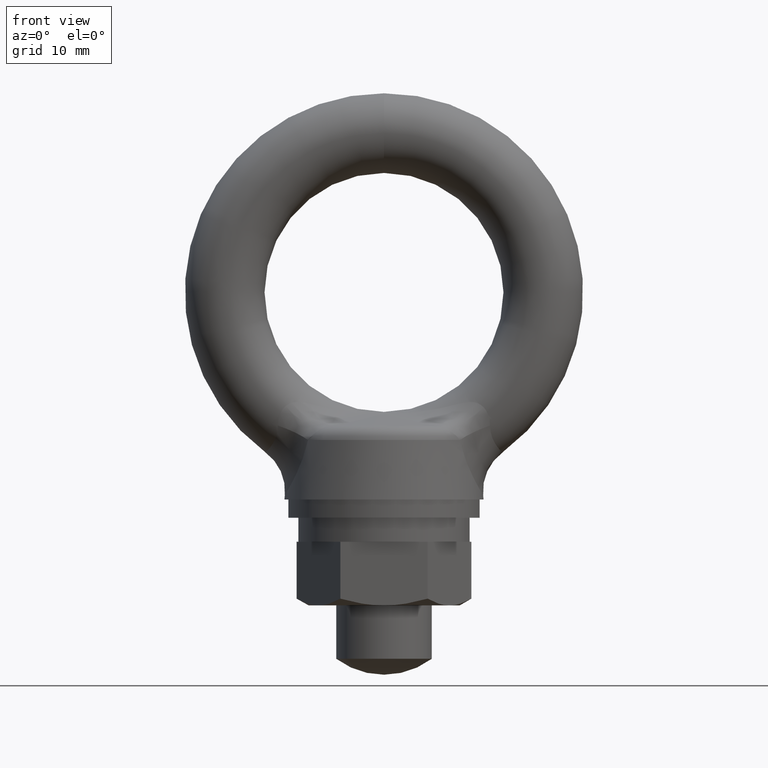
[diagram: clean part render]
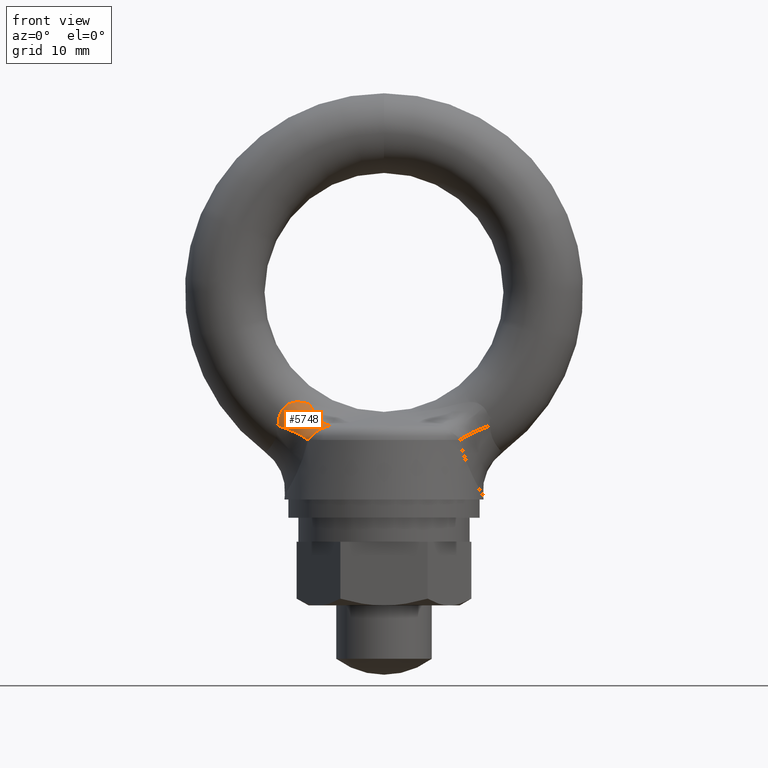
[diagram: same view with one face highlighted and labeled with its STEP entity id]
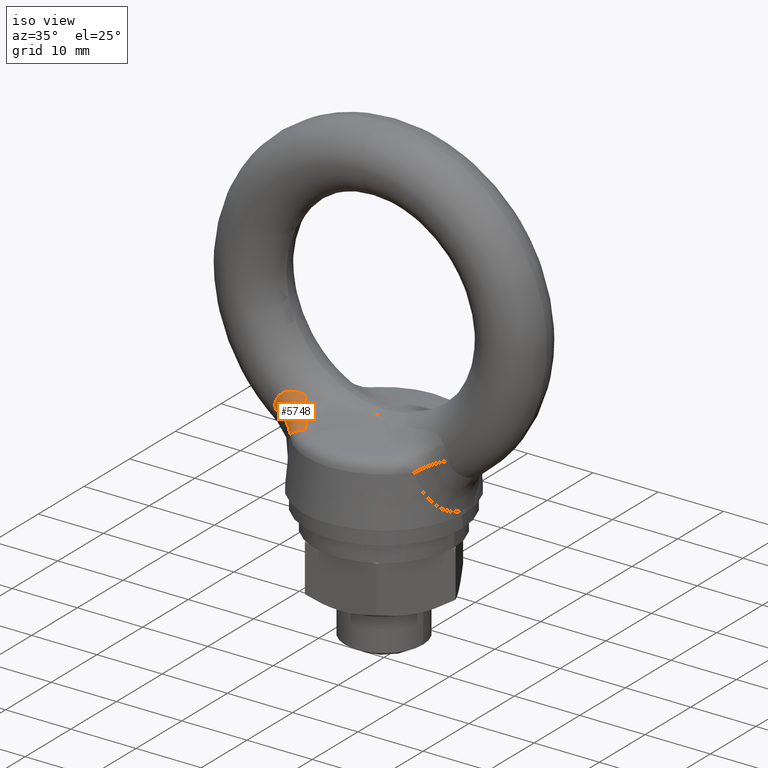
[diagram: same view with one face highlighted and labeled with its STEP entity id]
A machine part, front view. The second image highlights one B-rep face of the part: STEP entity #5748.
A second angle (iso view) of the same face is appended — the face is thin or edge-on in the first view.
In plain terms, the highlighted face is a freeform B-spline surface patch.
Its self-contained STEP definition (entity closure, byte-faithful):
#480 = CARTESIAN_POINT ( 'NONE',  ( -6.616645683539579700, -7.751372220779610500, -16.74023616556295100 ) ) ;
#1253 = CARTESIAN_POINT ( 'NONE',  ( -9.537127817778650000, -7.028310572481229800, -18.53738990767994800 ) ) ;
#1339 = CARTESIAN_POINT ( 'NONE',  ( -11.82945013327447900, -5.169503034726513800, -15.97101550041116300 ) ) ;
#2501 = CARTESIAN_POINT ( 'NONE',  ( -9.537127817778650000, -7.028310572481229800, -18.53738990767994800 ) ) ;
#2502 = CARTESIAN_POINT ( 'NONE',  ( -9.387530256854034900, -7.200739040392232200, -18.33010265895204000 ) ) ;
#2503 = CARTESIAN_POINT ( 'NONE',  ( -9.210486901524483000, -7.346946296539043100, -18.12853105271439000 ) ) ;
#2504 = CARTESIAN_POINT ( 'NONE',  ( -8.799428681623485500, -7.581588835471430700, -17.73487168706547500 ) ) ;
#2505 = CARTESIAN_POINT ( 'NONE',  ( -8.571014422538098600, -7.666058305876177300, -17.54837710882584300 ) ) ;
#2506 = CARTESIAN_POINT ( 'NONE',  ( -8.066797062893675400, -7.765780834802571400, -17.21041175693599000 ) ) ;
#2507 = CARTESIAN_POINT ( 'NONE',  ( -7.796735016101216300, -7.777521810739974800, -17.06314503767733700 ) ) ;
#2508 = CARTESIAN_POINT ( 'NONE',  ( -7.222409335276565500, -7.762224530899469100, -16.84144719434066300 ) ) ;
#2509 = CARTESIAN_POINT ( 'NONE',  ( -6.923499156298799300, -7.738500842341252900, -16.77258283896321000 ) ) ;
#2510 = CARTESIAN_POINT ( 'NONE',  ( -6.616645683539579700, -7.751372220779610500, -16.74023616556295100 ) ) ;
#2511 = B_SPLINE_CURVE_WITH_KNOTS ( 'NONE', 3,
 ( #2510, #2509, #2508, #2507, #2506, #2505, #2504, #2503, #2502, #2501 ),
 .UNSPECIFIED., .F., .F.,
 ( 4, 2, 2, 2, 4 ),
 ( 0.0000000000000000000, 0.0009180277221817911200, 0.001836055444363582200, 0.002754083166545373500, 0.003672110888727164500 ),
 .UNSPECIFIED. ) ;
#2522 = CARTESIAN_POINT ( 'NONE',  ( -9.388747886670287800, -3.872499616173370000, -13.97642154846874100 ) ) ;
#2523 = B_SPLINE_CURVE_WITH_KNOTS ( 'NONE', 3,
 ( #2572, #2571, #2570, #2569, #2568, #2567, #2566, #2565, #2564, #2563, #2562, #2561, #2560, #2559, #2558, #2557, #2556, #2555, #2554, #2553 ),
 .UNSPECIFIED., .F., .F.,
 ( 4, 2, 2, 2, 2, 2, 2, 2, 2, 4 ),
 ( 0.0000000000000000000, 0.0007456957374151884800, 0.001491391474830377000, 0.002237087212245565300, 0.002982782949660753900, 0.003355630818368348400, 0.003728478687075942500, 0.004474174424491131500, 0.005219870161906320500, 0.005965565899321510400 ),
 .UNSPECIFIED. ) ;
#2527 = CARTESIAN_POINT ( 'NONE',  ( -13.31893206947279900, -4.806487607529510000, -16.72142944604119900 ) ) ;
#2553 = CARTESIAN_POINT ( 'NONE',  ( -9.388747886670287800, -3.872499616173370000, -13.97642154846874100 ) ) ;
#2554 = CARTESIAN_POINT ( 'NONE',  ( -9.622791567748533800, -3.937060382688528600, -13.91442621199022900 ) ) ;
#2555 = CARTESIAN_POINT ( 'NONE',  ( -9.857578638938626600, -4.007105676884409100, -13.86006324770248300 ) ) ;
#2556 = CARTESIAN_POINT ( 'NONE',  ( -10.32591816442637600, -4.156510773840197200, -13.77956379790940000 ) ) ;
#2557 = CARTESIAN_POINT ( 'NONE',  ( -10.55986041312676300, -4.236012015019325000, -13.75312123015250000 ) ) ;
#2558 = CARTESIAN_POINT ( 'NONE',  ( -11.02990934933251100, -4.402471360979028200, -13.74700365507099200 ) ) ;
#2559 = CARTESIAN_POINT ( 'NONE',  ( -11.26792950221027600, -4.490269575372594500, -13.76813202839546200 ) ) ;
#2560 = CARTESIAN_POINT ( 'NONE',  ( -11.61236774582785500, -4.616739249964407300, -13.85452889140942100 ) ) ;
#2561 = CARTESIAN_POINT ( 'NONE',  ( -11.72621776301365600, -4.658375832973575800, -13.89283282168687700 ) ) ;
#2562 = CARTESIAN_POINT ( 'NONE',  ( -11.94366068837105600, -4.736151783127862600, -13.98793040789124500 ) ) ;
#2563 = CARTESIAN_POINT ( 'NONE',  ( -12.04800721918670100, -4.772570607816228400, -14.04479500500064800 ) ) ;
#2564 = CARTESIAN_POINT ( 'NONE',  ( -12.34777937304510500, -4.872274553751541500, -14.24490453279811100 ) ) ;
#2565 = CARTESIAN_POINT ( 'NONE',  ( -12.52997194710976500, -4.925402686716116000, -14.42044075256415200 ) ) ;
#2566 = CARTESIAN_POINT ( 'NONE',  ( -12.83095686702874800, -4.990425999208319800, -14.81858703838533700 ) ) ;
#2567 = CARTESIAN_POINT ( 'NONE',  ( -12.95000508961919500, -5.003280128140191100, -15.03678076668746600 ) ) ;
#2568 = CARTESIAN_POINT ( 'NONE',  ( -13.13939469567438500, -4.995336309556057200, -15.50299934104202400 ) ) ;
#2569 = CARTESIAN_POINT ( 'NONE',  ( -13.20716408490534900, -4.974196633764810500, -15.74701167014382700 ) ) ;
#2570 = CARTESIAN_POINT ( 'NONE',  ( -13.29554605287141200, -4.907492148943015700, -16.23195564184692700 ) ) ;
#2571 = CARTESIAN_POINT ( 'NONE',  ( -13.31722921488793600, -4.861827998415892100, -16.47592980092546000 ) ) ;
#2572 = CARTESIAN_POINT ( 'NONE',  ( -13.31893206947279900, -4.806487607529510000, -16.72142944604119900 ) ) ;
#3047 = FACE_OUTER_BOUND ( 'NONE', #5749, .T. ) ;
#3077 = CARTESIAN_POINT ( 'NONE',  ( -9.459619899875138000, -7.117647400250828800, -18.42999241431477500 ) ) ;
#3078 = CARTESIAN_POINT ( 'NONE',  ( -9.674481186897413200, -6.795049967492538200, -18.27242344297339800 ) ) ;
#3079 = CARTESIAN_POINT ( 'NONE',  ( -9.924127944089459400, -6.498613668743151300, -18.10880628840157100 ) ) ;
#3080 = CARTESIAN_POINT ( 'NONE',  ( -10.20314235124555900, -6.234765519327566200, -17.94268802067241000 ) ) ;
#3081 = CARTESIAN_POINT ( 'NONE',  ( -10.48215675840165800, -5.970917369911980200, -17.77656975294324900 ) ) ;
#3082 = CARTESIAN_POINT ( 'NONE',  ( -10.79052115608625300, -5.739674049433531900, -17.60796085417533900 ) ) ;
#3083 = CARTESIAN_POINT ( 'NONE',  ( -11.12154498155136700, -5.546051596680407600, -17.44051183484585000 ) ) ;
#3084 = CARTESIAN_POINT ( 'NONE',  ( -11.45256880701648200, -5.352429143927284200, -17.27306281551636500 ) ) ;
#3085 = CARTESIAN_POINT ( 'NONE',  ( -11.80623111437695100, -5.196439816020029100, -17.10678421695513100 ) ) ;
#3086 = CARTESIAN_POINT ( 'NONE',  ( -12.17485895052286800, -5.081471041061164800, -16.94527187261366700 ) ) ;
#3087 = CARTESIAN_POINT ( 'NONE',  ( -12.54348678666878300, -4.966502266102300400, -16.78375952827220300 ) ) ;
#3088 = CARTESIAN_POINT ( 'NONE',  ( -12.92705682591940800, -4.892561348072644200, -16.62702358340594000 ) ) ;
#3089 = CARTESIAN_POINT ( 'NONE',  ( -13.31724669299919700, -4.861259984260596100, -16.47844961098305600 ) ) ;
#3090 = CARTESIAN_POINT ( 'NONE',  ( -9.537127817778653600, -7.028310572481227100, -18.53738990767995200 ) ) ;
#3091 = CARTESIAN_POINT ( 'NONE',  ( -9.749420776760048900, -6.717507049856432200, -18.38325500335318800 ) ) ;
#3092 = CARTESIAN_POINT ( 'NONE',  ( -9.994987278118491900, -6.431237492971280100, -18.22550769230264200 ) ) ;
#3093 = CARTESIAN_POINT ( 'NONE',  ( -10.26878078110255300, -6.175384915089892100, -18.06738977758060800 ) ) ;
#3094 = CARTESIAN_POINT ( 'NONE',  ( -10.54257428408661200, -5.919532337208503100, -17.90927186285857400 ) ) ;
#3095 = CARTESIAN_POINT ( 'NONE',  ( -10.84457921013932400, -5.694111296068430600, -17.75079234120499200 ) ) ;
#3096 = CARTESIAN_POINT ( 'NONE',  ( -11.16858917460305600, -5.503754330977967500, -17.59520806304476500 ) ) ;
#3097 = CARTESIAN_POINT ( 'NONE',  ( -11.49259913906678700, -5.313397365887505300, -17.43962378488453900 ) ) ;
#3098 = CARTESIAN_POINT ( 'NONE',  ( -11.83859570612171700, -5.158115307954013000, -17.28694360279639900 ) ) ;
#3099 = CARTESIAN_POINT ( 'NONE',  ( -12.19946843616863700, -5.041099297780919900, -17.14030518725486700 ) ) ;
#3100 = CARTESIAN_POINT ( 'NONE',  ( -12.56034116621555800, -4.924083287607827800, -16.99366677171333300 ) ) ;
#3101 = CARTESIAN_POINT ( 'NONE',  ( -12.93606952598278200, -4.845339983280739600, -16.85307846628713300 ) ) ;
#3102 = CARTESIAN_POINT ( 'NONE',  ( -13.31893206947281000, -4.806487607529510900, -16.72142944604121000 ) ) ;
#3103 = B_SPLINE_SURFACE_WITH_KNOTS ( 'NONE', 3, 3, ( 
 ( #3102, #3101, #3100, #3099, #3098, #3097, #3096, #3095, #3094, #3093, #3092, #3091, #3090 ),
 ( #3089, #3088, #3087, #3086, #3085, #3084, #3083, #3082, #3081, #3080, #3079, #3078, #3077 ),
 ( #3151, #3150, #3149, #3148, #3147, #3146, #3145, #3144, #3143, #3142, #3141, #3140, #3139 ),
 ( #3138, #3137, #3136, #3135, #3134, #3133, #3132, #3131, #3130, #3129, #3128, #3127, #3126 ),
 ( #3125, #3124, #3123, #3122, #3121, #3120, #3119, #3118, #3117, #3116, #3115, #3114, #3113 ),
 ( #3112, #3111, #3110, #3109, #3108, #3107, #3106, #3105, #3198, #3197, #3196, #3195, #3194 ),
 ( #3193, #3192, #3191, #3190, #3189, #3188, #3187, #3186, #3185, #3184, #3183, #3182, #3181 ),
 ( #3180, #3179, #3178, #3177, #3176, #3175, #3174, #3173, #3172, #3171, #3170, #3169, #3168 ),
 ( #3167, #3166, #3165, #3164, #3163, #3162, #3161, #3160, #3159, #3158, #3157, #3156, #3155 ),
 ( #3154, #3153, #3152, #1339, #3246, #3245, #3244, #3243, #3242, #3241, #3240, #3239, #3238 ),
 ( #3237, #3236, #3235, #3234, #3233, #3232, #3231, #3230, #3229, #3228, #3227, #3226, #3225 ),
 ( #3224, #3223, #3222, #3221, #3220, #3219, #3218, #3217, #3216, #3215, #3214, #3213, #3212 ),
 ( #3211, #3210, #3209, #3208, #3207, #3206, #3205, #3204, #3203, #3202, #3201, #3200, #3199 ),
 ( #3293, #3292, #3291, #3290, #3289, #3288, #3287, #3286, #3285, #3284, #3283, #3282, #3281 ),
 ( #3280, #3279, #3278, #3277, #3276, #3275, #3274, #3273, #3272, #3271, #3270, #3269, #3268 ),
 ( #3267, #3266, #3265, #3264, #3263, #3262, #3261, #3260, #3259, #3258, #3257, #3256, #3255 ),
 ( #3254, #3253, #3252, #3251, #3250, #3249, #3248, #3247, #3340, #3339, #3338, #3337, #3336 ),
 ( #3335, #3334, #3333, #3332, #3331, #3330, #3329, #3328, #3327, #3326, #3325, #3324, #3323 ),
 ( #3322, #3321, #3320, #3319, #3318, #3317, #3316, #3315, #3314, #3313, #3312, #3311, #3310 ),
 ( #3309, #3308, #3307, #3306, #3305, #3304, #3303, #3302, #3301, #3300, #3299, #3298, #3297 ),
 ( #3296, #3295, #3294, #3387, #3386, #3385, #3384, #3383, #3382, #3381, #3380, #3379, #3378 ),
 ( #3377, #3376, #3375, #3374, #3373, #3372, #3371, #3370, #3369, #3368, #3367, #3366, #3365 ),
 ( #3364, #3363, #3362, #3361, #3360, #3359, #3358, #3357, #3356, #3355, #3354, #3353, #3352 ),
 ( #3351, #3350, #3349, #3348, #3347, #3346, #3345, #3344, #3343, #3342, #3341, #3434, #3433 ),
 ( #3432, #3431, #3430, #3429, #3428, #3427, #3426, #3425, #3424, #3423, #3422, #3421, #3420 ),
 ( #3419, #3418, #3417, #3416, #3415, #3414, #3413, #3412, #3411, #3410, #3409, #3408, #3407 ),
 ( #3406, #3405, #3404, #3403, #3402, #3401, #3400, #3399, #3398, #3397, #3396, #3395, #3394 ),
 ( #3393, #3392, #3391, #3390, #3389, #3388, #3481, #3480, #3479, #3478, #3477, #3476, #3475 ),
 ( #3474, #3473, #3472, #3471, #3470, #3469, #3468, #3467, #3466, #3465, #3464, #3463, #3462 ),
 ( #3461, #3460, #3459, #3458, #3457, #3456, #3455, #3454, #3453, #3452, #3451, #3450, #3449 ),
 ( #3448, #3447, #3446, #3445, #3444, #3443, #3442, #3441, #3440, #3439, #3438, #3437, #3436 ),
 ( #3435, #3529, #3528, #3527, #3526, #3525, #3524, #3523, #3522, #3521, #3520, #3519, #3518 ),
 ( #3517, #3516, #3515, #3514, #3513, #3512, #3511, #3510, #3509, #3508, #3507, #3506, #3505 ),
 ( #3504, #3503, #3502, #3501, #3500, #3499, #3498, #3497, #3496, #3495, #3494, #3493, #3492 ),
 ( #3491, #3490, #3489, #3488, #3487, #3486, #3485, #3484, #3483, #3482, #3576, #3575, #3574 ),
 ( #3573, #3572, #3571, #3570, #3569, #3568, #3567, #3566, #3565, #3564, #3563, #3562, #3561 ),
 ( #3560, #3559, #3558, #3557, #3556, #3555, #3554, #3553, #3552, #3551, #3550, #3549, #3548 ),
 ( #3547, #3546, #3545, #3544, #3543, #3542, #3541, #3540, #3539, #3538, #3537, #3536, #3535 ),
 ( #3534, #3533, #3532, #3531, #3530, #3623, #3622, #3621, #3620, #3619, #3618, #3617, #3616 ),
 ( #3615, #3614, #3613, #3612, #3611, #3610, #3609, #3608, #3607, #3606, #3605, #3604, #3603 ),
 ( #3602, #3601, #3600, #3599, #3598, #3597, #3596, #3595, #3594, #3593, #3592, #3591, #3590 ),
 ( #3589, #3588, #3587, #3586, #3585, #3584, #3583, #3582, #3581, #3580, #3579, #3578, #3577 ),
 ( #3671, #3670, #3669, #3668, #3667, #3666, #3665, #3664, #3663, #3662, #3661, #3660, #3659 ),
 ( #3658, #3657, #3656, #3655, #3654, #3653, #3652, #3651, #3650, #3649, #3648, #3647, #3646 ),
 ( #3645, #3644, #3643, #3642, #3641, #3640, #3639, #3638, #3637, #3636, #3635, #3634, #3633 ),
 ( #3632, #3631, #3630, #3629, #3628, #3627, #3626, #3625, #3624, #3716, #3715, #3714, #3713 ),
 ( #3712, #3711, #3710, #3709, #3708, #3707, #3706, #3705, #3704, #3703, #3702, #3701, #3700 ),
 ( #3699, #3698, #3697, #3696, #3695, #3694, #3693, #3692, #3691, #3690, #3689, #3688, #3687 ),
 ( #3686, #3685, #3684, #3683, #3682, #3681, #3680, #3679, #3678, #3677, #3676, #3675, #3674 ) ),
 .UNSPECIFIED., .F., .F., .F.,
 ( 4, 3, 3, 3, 3, 3, 3, 3, 3, 3, 3, 3, 3, 3, 3, 3, 4 ),
 ( 4, 3, 3, 3, 4 ),
 ( 9.974659986866640800E-018, 0.001379559742929497000, 0.002759119485858984100, 0.003104009421591356000, 0.003448899357323727500, 0.004138679228788470900, 0.005518238971717957800, 0.005863128907450329700, 0.006208018843182701700, 0.006897798714647444600, 0.007587578586112187600, 0.008277358457576931500, 0.008622248393309304300, 0.008967138329041675300, 0.009656918200506417500, 0.01034669807197116100, 0.01103647794343590500 ),
 ( 0.0000000000000000000, 0.2500000000000000000, 0.5000000000000000000, 0.7500000000000000000, 1.000000000000000000 ),
 .UNSPECIFIED. ) ;
#3105 = CARTESIAN_POINT ( 'NONE',  ( -10.50446172409947300, -5.858052185062874200, -17.10502999459139800 ) ) ;
#3106 = CARTESIAN_POINT ( 'NONE',  ( -10.85544511814666000, -5.648653088106112100, -16.89417771297002700 ) ) ;
#3107 = CARTESIAN_POINT ( 'NONE',  ( -11.20642851219384500, -5.439253991149350000, -16.68332543134865600 ) ) ;
#3108 = CARTESIAN_POINT ( 'NONE',  ( -11.58049880982307500, -5.276988915925490400, -16.46405310980851800 ) ) ;
#3109 = CARTESIAN_POINT ( 'NONE',  ( -11.96785257443796600, -5.166108582720712100, -16.24209568093549200 ) ) ;
#3110 = CARTESIAN_POINT ( 'NONE',  ( -12.35520633905285900, -5.055228249515932900, -16.02013825206246600 ) ) ;
#3111 = CARTESIAN_POINT ( 'NONE',  ( -12.75580767318303200, -4.995742932106014500, -15.79551617590669500 ) ) ;
#3112 = CARTESIAN_POINT ( 'NONE',  ( -13.15915557374187700, -4.989213559210381500, -15.57409962276966700 ) ) ;
#3113 = CARTESIAN_POINT ( 'NONE',  ( -9.192197924221245500, -7.347847127725325200, -18.11787831646760000 ) ) ;
#3114 = CARTESIAN_POINT ( 'NONE',  ( -9.414972779303830900, -6.990277609364070200, -17.95924542679449600 ) ) ;
#3115 = CARTESIAN_POINT ( 'NONE',  ( -9.675753110292232500, -6.663089581158144100, -17.78564337365478200 ) ) ;
#3116 = CARTESIAN_POINT ( 'NONE',  ( -9.967991451317470100, -6.374491555836709000, -17.60143040626741100 ) ) ;
#3117 = CARTESIAN_POINT ( 'NONE',  ( -10.26022979234270800, -6.085893530515273000, -17.41721743888003700 ) ) ;
#3118 = CARTESIAN_POINT ( 'NONE',  ( -10.58390131732463500, -5.835909995378471200, -17.22240918489940500 ) ) ;
#3119 = CARTESIAN_POINT ( 'NONE',  ( -10.93087986641075900, -5.630814218590869800, -17.02189034187314600 ) ) ;
#3120 = CARTESIAN_POINT ( 'NONE',  ( -11.27785841549688200, -5.425718441803268500, -16.82137149884688700 ) ) ;
#3121 = CARTESIAN_POINT ( 'NONE',  ( -11.64811451163264200, -5.265527839693425500, -16.61515904324261000 ) ) ;
#3122 = CARTESIAN_POINT ( 'NONE',  ( -12.03235190102962300, -5.154265135406928000, -16.40841879441705200 ) ) ;
#3123 = CARTESIAN_POINT ( 'NONE',  ( -12.41658929042660400, -5.043002431120428700, -16.20167854559149800 ) ) ;
#3124 = CARTESIAN_POINT ( 'NONE',  ( -12.81477532458224800, -4.980677096005550200, -15.99442797801567000 ) ) ;
#3125 = CARTESIAN_POINT ( 'NONE',  ( -13.21691111515092300, -4.968858993658826300, -15.79185481081835700 ) ) ;
#3126 = CARTESIAN_POINT ( 'NONE',  ( -9.283571024119682500, -7.273639294718050200, -18.22130602449460900 ) ) ;
#3127 = CARTESIAN_POINT ( 'NONE',  ( -9.503623871464141000, -6.927624244571658700, -18.06242608801797500 ) ) ;
#3128 = CARTESIAN_POINT ( 'NONE',  ( -9.760712310693566700, -6.610646577565352000, -17.89164995417395000 ) ) ;
#3129 = CARTESIAN_POINT ( 'NONE',  ( -10.04866621504894100, -6.330313762907268300, -17.71307625297636400 ) ) ;
#3130 = CARTESIAN_POINT ( 'NONE',  ( -10.33662011940431700, -6.049980948249184600, -17.53450255177877500 ) ) ;
#3131 = CARTESIAN_POINT ( 'NONE',  ( -10.65541710368485800, -5.806314778685483600, -17.34814516533894800 ) ) ;
#3132 = CARTESIAN_POINT ( 'NONE',  ( -10.99740603503799500, -5.605163246283016300, -17.15847667398861300 ) ) ;
#3133 = CARTESIAN_POINT ( 'NONE',  ( -11.33939496639113100, -5.404011713880549900, -16.96880818263827700 ) ) ;
#3134 = CARTESIAN_POINT ( 'NONE',  ( -11.70454925899608000, -5.245390455924915200, -16.77584333098480600 ) ) ;
#3135 = CARTESIAN_POINT ( 'NONE',  ( -12.08410520384000200, -5.133106385209210000, -16.58421327863345200 ) ) ;
#3136 = CARTESIAN_POINT ( 'NONE',  ( -12.46366114868392400, -5.020822314493504900, -16.39258322628210300 ) ) ;
#3137 = CARTESIAN_POINT ( 'NONE',  ( -12.85758923953020600, -4.954884159850474000, -16.20230287032971000 ) ) ;
#3138 = CARTESIAN_POINT ( 'NONE',  ( -13.25643519573618600, -4.936874438073257200, -16.01793894244066200 ) ) ;
#3139 = CARTESIAN_POINT ( 'NONE',  ( -9.374944124018119500, -7.199431461710776000, -18.32473373252162200 ) ) ;
#3140 = CARTESIAN_POINT ( 'NONE',  ( -9.592274963624452900, -6.864970879779245500, -18.16560674924145500 ) ) ;
#3141 = CARTESIAN_POINT ( 'NONE',  ( -9.845671511094899100, -6.558203573972559900, -17.99765653469312100 ) ) ;
#3142 = CARTESIAN_POINT ( 'NONE',  ( -10.12934097878041400, -6.286135969977827600, -17.82472209968531700 ) ) ;
#3143 = CARTESIAN_POINT ( 'NONE',  ( -10.41301044646592700, -6.014068365983096200, -17.65178766467751400 ) ) ;
#3144 = CARTESIAN_POINT ( 'NONE',  ( -10.72693289004508100, -5.776719561992495100, -17.47388114577849200 ) ) ;
#3145 = CARTESIAN_POINT ( 'NONE',  ( -11.06393220366523200, -5.579512273975162800, -17.29506300610408300 ) ) ;
#3146 = CARTESIAN_POINT ( 'NONE',  ( -11.40093151728538100, -5.382304985957830500, -17.11624486642967100 ) ) ;
#3147 = CARTESIAN_POINT ( 'NONE',  ( -11.76098400635951800, -5.225253072156402100, -16.93652761872699800 ) ) ;
#3148 = CARTESIAN_POINT ( 'NONE',  ( -12.13585850665038100, -5.111947635011493000, -16.76000776284985200 ) ) ;
#3149 = CARTESIAN_POINT ( 'NONE',  ( -12.51073300694124400, -4.998642197866582900, -16.58348790697270700 ) ) ;
#3150 = CARTESIAN_POINT ( 'NONE',  ( -12.90040315447816300, -4.929091223695397000, -16.41017776264374800 ) ) ;
#3151 = CARTESIAN_POINT ( 'NONE',  ( -13.29595927632144900, -4.904889882487688100, -16.24402307406296600 ) ) ;
#3152 = CARTESIAN_POINT ( 'NONE',  ( -12.21882501623971800, -5.057312635688802500, -15.72264317839331900 ) ) ;
#3153 = CARTESIAN_POINT ( 'NONE',  ( -12.61961735251776600, -5.000260524125922100, -15.46731217901426300 ) ) ;
#3154 = CARTESIAN_POINT ( 'NONE',  ( -13.02060540782700400, -4.999944094943444400, -15.21217148285456000 ) ) ;
#3155 = CARTESIAN_POINT ( 'NONE',  ( -8.935976323501606100, -7.502196019667716900, -17.86668681965410200 ) ) ;
#3156 = CARTESIAN_POINT ( 'NONE',  ( -9.166939244843515400, -7.117745001589022500, -17.71586262506424000 ) ) ;
#3157 = CARTESIAN_POINT ( 'NONE',  ( -9.436930461580281800, -6.766089756042822100, -17.54129442197567100 ) ) ;
#3158 = CARTESIAN_POINT ( 'NONE',  ( -9.738457193058963000, -6.456989128323514600, -17.34782702002964100 ) ) ;
#3159 = CARTESIAN_POINT ( 'NONE',  ( -10.03998392453764400, -6.147888500604207000, -17.15435961808361000 ) ) ;
#3160 = CARTESIAN_POINT ( 'NONE',  ( -10.37301477112270100, -5.881374676962174400, -16.94201316390030600 ) ) ;
#3161 = CARTESIAN_POINT ( 'NONE',  ( -10.72830738725026100, -5.664843749719025800, -16.71668048719483900 ) ) ;
#3162 = CARTESIAN_POINT ( 'NONE',  ( -11.08360000337781900, -5.448312822475876300, -16.49134781048936900 ) ) ;
#3163 = CARTESIAN_POINT ( 'NONE',  ( -11.46111738969500700, -5.281787339026043200, -16.25305237324363700 ) ) ;
#3164 = CARTESIAN_POINT ( 'NONE',  ( -11.85038248435464700, -5.169888651072853700, -16.00840677733301800 ) ) ;
#3165 = CARTESIAN_POINT ( 'NONE',  ( -12.23964757901428500, -5.057989963119664100, -15.76376118142239600 ) ) ;
#3166 = CARTESIAN_POINT ( 'NONE',  ( -12.64061984385405200, -5.000729723331627200, -15.51279089743411900 ) ) ;
#3167 = CARTESIAN_POINT ( 'NONE',  ( -13.04217113634821600, -4.999697114220192700, -15.26245997733349600 ) ) ;
#3168 = CARTESIAN_POINT ( 'NONE',  ( -8.962692604417860300, -7.487998482451176900, -17.89151085137688600 ) ) ;
#3169 = CARTESIAN_POINT ( 'NONE',  ( -9.192762660079644400, -7.106109036601271400, -17.73963942211704400 ) ) ;
#3170 = CARTESIAN_POINT ( 'NONE',  ( -9.461821663969878700, -6.756822031014096700, -17.56493515882366200 ) ) ;
#3171 = CARTESIAN_POINT ( 'NONE',  ( -9.762470785542126000, -6.449742171711176500, -17.37220240515926400 ) ) ;
#3172 = CARTESIAN_POINT ( 'NONE',  ( -10.06311990711437300, -6.142662312408255300, -17.17946965149486300 ) ) ;
#3173 = CARTESIAN_POINT ( 'NONE',  ( -10.39532841069928200, -5.877820990352431900, -16.96872811027846600 ) ) ;
#3174 = CARTESIAN_POINT ( 'NONE',  ( -10.74996085163309400, -5.662500861181620800, -16.74577270381758300 ) ) ;
#3175 = CARTESIAN_POINT ( 'NONE',  ( -11.10459329256690700, -5.447180732010809700, -16.52281729735669900 ) ) ;
#3176 = CARTESIAN_POINT ( 'NONE',  ( -11.48161341577908200, -5.281403807093122200, -16.28767081526702000 ) ) ;
#3177 = CARTESIAN_POINT ( 'NONE',  ( -11.87065339419783100, -5.169728738436333500, -16.04679892281445300 ) ) ;
#3178 = CARTESIAN_POINT ( 'NONE',  ( -12.25969337261658000, -5.058053669779544000, -15.80592703036188800 ) ) ;
#3179 = CARTESIAN_POINT ( 'NONE',  ( -12.66071343270836300, -5.000491874374776400, -15.55935434628686500 ) ) ;
#3180 = CARTESIAN_POINT ( 'NONE',  ( -13.06268562370206600, -4.998626389140394400, -15.31386044161524200 ) ) ;
#3181 = CARTESIAN_POINT ( 'NONE',  ( -8.988979057424888500, -7.473296334198517200, -17.91646569913762800 ) ) ;
#3182 = CARTESIAN_POINT ( 'NONE',  ( -9.218185141428939700, -7.094020975485570100, -17.76365330041936700 ) ) ;
#3183 = CARTESIAN_POINT ( 'NONE',  ( -9.486315472361077600, -6.747135211282588000, -17.58890630832156500 ) ) ;
#3184 = CARTESIAN_POINT ( 'NONE',  ( -9.786065473784791600, -6.442089123460385200, -17.39698529117079300 ) ) ;
#3185 = CARTESIAN_POINT ( 'NONE',  ( -10.08581547520850400, -6.137043035638181500, -17.20506427402002100 ) ) ;
#3186 = CARTESIAN_POINT ( 'NONE',  ( -10.41715507337932100, -5.873867229294520900, -16.99598848714104800 ) ) ;
#3187 = CARTESIAN_POINT ( 'NONE',  ( -10.77105770493580800, -5.659731306566518700, -16.77545370564807200 ) ) ;
#3188 = CARTESIAN_POINT ( 'NONE',  ( -11.12496033649229500, -5.445595383838517400, -16.55491892415509300 ) ) ;
#3189 = CARTESIAN_POINT ( 'NONE',  ( -11.50139049458787900, -5.280520828859596200, -16.32294727417532000 ) ) ;
#3190 = CARTESIAN_POINT ( 'NONE',  ( -11.89009323024585800, -5.169004707293209000, -16.08585827443866000 ) ) ;
#3191 = CARTESIAN_POINT ( 'NONE',  ( -12.27879596590383600, -5.057488585726821900, -15.84876927470200200 ) ) ;
#3192 = CARTESIAN_POINT ( 'NONE',  ( -12.67973228080329700, -4.999542085921024000, -15.60658671221083100 ) ) ;
#3193 = CARTESIAN_POINT ( 'NONE',  ( -13.08197961371002900, -4.996743823154391300, -15.36590827784612800 ) ) ;
#3194 = CARTESIAN_POINT ( 'NONE',  ( -9.094124869452999200, -7.414487741187876700, -18.01628509018059900 ) ) ;
#3195 = CARTESIAN_POINT ( 'NONE',  ( -9.319875066826121200, -7.045668731022765900, -17.85970881362865000 ) ) ;
#3196 = CARTESIAN_POINT ( 'NONE',  ( -9.584290705925866400, -6.708387932356554700, -17.68479090631316100 ) ) ;
#3197 = CARTESIAN_POINT ( 'NONE',  ( -9.880444226755445300, -6.411476930457219200, -17.49611683521690600 ) ) ;
#3198 = CARTESIAN_POINT ( 'NONE',  ( -10.17659774758502200, -6.114565928557883700, -17.30744276412064800 ) ) ;
#3199 = CARTESIAN_POINT ( 'NONE',  ( -8.827537363869106800, -7.554761515447681000, -17.76962339123739200 ) ) ;
#3200 = CARTESIAN_POINT ( 'NONE',  ( -9.062232587211626700, -7.160626925632992200, -17.62362815240016500 ) ) ;
#3201 = CARTESIAN_POINT ( 'NONE',  ( -9.335928205653548400, -6.799902751207029400, -17.45022060791834300 ) ) ;
#3202 = CARTESIAN_POINT ( 'NONE',  ( -9.640764292724135500, -6.482948184265546300, -17.25438063491549200 ) ) ;
#3203 = CARTESIAN_POINT ( 'NONE',  ( -9.945600379794724300, -6.165993617324062400, -17.05854066191264100 ) ) ;
#3204 = CARTESIAN_POINT ( 'NONE',  ( -10.28154292418779800, -5.892844021261611300, -16.84029011073248600 ) ) ;
#3205 = CARTESIAN_POINT ( 'NONE',  ( -10.63894440683691100, -5.671343642006511300, -16.60589664942993700 ) ) ;
#3206 = CARTESIAN_POINT ( 'NONE',  ( -10.99634588948602200, -5.449843262751411300, -16.37150318812738400 ) ) ;
#3207 = CARTESIAN_POINT ( 'NONE',  ( -11.37516643423552200, -5.280016813641545100, -16.12099296855294000 ) ) ;
#3208 = CARTESIAN_POINT ( 'NONE',  ( -11.76452716167811600, -5.166741330744890200, -15.86156008433963600 ) ) ;
#3209 = CARTESIAN_POINT ( 'NONE',  ( -12.15388788912071000, -5.053465847848236200, -15.60212720012633400 ) ) ;
#3210 = CARTESIAN_POINT ( 'NONE',  ( -12.55374535732980600, -4.996753969586869500, -15.33380059683420900 ) ) ;
#3211 = CARTESIAN_POINT ( 'NONE',  ( -12.95261655347243300, -4.998234334357301000, -15.06428601481827200 ) ) ;
#3212 = CARTESIAN_POINT ( 'NONE',  ( -8.854972351086591000, -7.542341890371387700, -17.79353484337294900 ) ) ;
#3213 = CARTESIAN_POINT ( 'NONE',  ( -9.088704469302634000, -7.150528433951123500, -17.64622059236548800 ) ) ;
#3214 = CARTESIAN_POINT ( 'NONE',  ( -9.361477170745720500, -6.792000412344831900, -17.47241543371987000 ) ) ;
#3215 = CARTESIAN_POINT ( 'NONE',  ( -9.665520806683696600, -6.476969896959402300, -17.27707025757890200 ) ) ;
#3216 = CARTESIAN_POINT ( 'NONE',  ( -9.969564442621672700, -6.161939381573972700, -17.08172508143793100 ) ) ;
#3217 = CARTESIAN_POINT ( 'NONE',  ( -10.30484564611146000, -5.890440943084260400, -16.86486132577483200 ) ) ;
#3218 = CARTESIAN_POINT ( 'NONE',  ( -10.66181416805711300, -5.670207763466574800, -16.63265597856804200 ) ) ;
#3219 = CARTESIAN_POINT ( 'NONE',  ( -11.01878269000276400, -5.449974583848889300, -16.40045063136125200 ) ) ;
#3220 = CARTESIAN_POINT ( 'NONE',  ( -11.39739935436908900, -5.281030831093368700, -16.15292917285098500 ) ) ;
#3221 = CARTESIAN_POINT ( 'NONE',  ( -11.78687940544848800, -5.168188621059074200, -15.89714149492076300 ) ) ;
#3222 = CARTESIAN_POINT ( 'NONE',  ( -12.17635945652788500, -5.055346411024780600, -15.64135381699054200 ) ) ;
#3223 = CARTESIAN_POINT ( 'NONE',  ( -12.57666014918045700, -4.998618127205360500, -15.37732798535292400 ) ) ;
#3224 = CARTESIAN_POINT ( 'NONE',  ( -12.97637891266738700, -4.999619664733112100, -15.11258370921836500 ) ) ;
#3225 = CARTESIAN_POINT ( 'NONE',  ( -8.882146752209031600, -7.529350206475664100, -17.81772813482881200 ) ) ;
#3226 = CARTESIAN_POINT ( 'NONE',  ( -9.114939707434405800, -7.139940276397678300, -17.66918148627054600 ) ) ;
#3227 = CARTESIAN_POINT ( 'NONE',  ( -9.386786685134614700, -6.783667355464742400, -17.49506283824138800 ) ) ;
#3228 = CARTESIAN_POINT ( 'NONE',  ( -9.690009606414554000, -6.470593790195844800, -17.30029022044746900 ) ) ;
#3229 = CARTESIAN_POINT ( 'NONE',  ( -9.993232527694491600, -6.157520224926948100, -17.10551760265354900 ) ) ;
#3230 = CARTESIAN_POINT ( 'NONE',  ( -10.32779867805739600, -5.887679790512687600, -16.89011202876617900 ) ) ;
#3231 = CARTESIAN_POINT ( 'NONE',  ( -10.68425843860362300, -5.668693710133589500, -16.66015724437606900 ) ) ;
#3232 = CARTESIAN_POINT ( 'NONE',  ( -11.04071819914984900, -5.449707629754492200, -16.43020245998596000 ) ) ;
#3233 = CARTESIAN_POINT ( 'NONE',  ( -11.41903311092347200, -5.281599528502408000, -16.18572327161437100 ) ) ;
#3234 = CARTESIAN_POINT ( 'NONE',  ( -11.80851778219430900, -5.169117418380174000, -15.93362422348930700 ) ) ;
#3235 = CARTESIAN_POINT ( 'NONE',  ( -12.19800245346514900, -5.056635308257940100, -15.68152517536424300 ) ) ;
#3236 = CARTESIAN_POINT ( 'NONE',  ( -12.59861486118147900, -4.999791324920216200, -15.42183346059440700 ) ) ;
#3237 = CARTESIAN_POINT ( 'NONE',  ( -12.99903967930579200, -5.000191075666697000, -15.16188298837562300 ) ) ;
#3238 = CARTESIAN_POINT ( 'NONE',  ( -8.909061537855318800, -7.515773113071690900, -17.84220747724145500 ) ) ;
#3239 = CARTESIAN_POINT ( 'NONE',  ( -9.140939476138960600, -7.128842638993350400, -17.69252205566739300 ) ) ;
#3240 = CARTESIAN_POINT ( 'NONE',  ( -9.411858573357449100, -6.774878555753781000, -17.51817863010853000 ) ) ;
#3241 = CARTESIAN_POINT ( 'NONE',  ( -9.714233399736759400, -6.463791459259679700, -17.32405862023855600 ) ) ;
#3242 = CARTESIAN_POINT ( 'NONE',  ( -10.01660822611606800, -6.152704362765578400, -17.12993861036858000 ) ) ;
#3243 = CARTESIAN_POINT ( 'NONE',  ( -10.35040672459005000, -5.884527233737430600, -16.91606259633324100 ) ) ;
#3244 = CARTESIAN_POINT ( 'NONE',  ( -10.70628291292694100, -5.666768729926308100, -16.68841886578545400 ) ) ;
#3245 = CARTESIAN_POINT ( 'NONE',  ( -11.06215910126383400, -5.449010226115184700, -16.46077513523766500 ) ) ;
#3246 = CARTESIAN_POINT ( 'NONE',  ( -11.44007525030924000, -5.281693433764225200, -16.21938782242900600 ) ) ;
#3247 = CARTESIAN_POINT ( 'NONE',  ( -10.03840155784112300, -5.907600483313677500, -16.61317668521433100 ) ) ;
#3248 = CARTESIAN_POINT ( 'NONE',  ( -10.39796633360456100, -5.672849344098241700, -16.35871400876174400 ) ) ;
#3249 = CARTESIAN_POINT ( 'NONE',  ( -10.75753110936799800, -5.438098204882806800, -16.10425133230915800 ) ) ;
#3250 = CARTESIAN_POINT ( 'NONE',  ( -11.13561292627301600, -5.258059201328729100, -15.82546773933681000 ) ) ;
#3251 = CARTESIAN_POINT ( 'NONE',  ( -11.52054948144983400, -5.138281985958250300, -15.53095314089768300 ) ) ;
#3252 = CARTESIAN_POINT ( 'NONE',  ( -11.90548603662665000, -5.018504770587772300, -15.23643854245855400 ) ) ;
#3253 = CARTESIAN_POINT ( 'NONE',  ( -12.29722775218000000, -4.959004745366327100, -14.92623076672411900 ) ) ;
#3254 = CARTESIAN_POINT ( 'NONE',  ( -12.68368846852136000, -4.961615813409890700, -14.60988448710154200 ) ) ;
#3255 = CARTESIAN_POINT ( 'NONE',  ( -8.659769727030514700, -7.622506386312109900, -17.62951972966312700 ) ) ;
#3256 = CARTESIAN_POINT ( 'NONE',  ( -8.900519993606684100, -7.215485447295859200, -17.49241948429547500 ) ) ;
#3257 = CARTESIAN_POINT ( 'NONE',  ( -9.179705284522826900, -6.842333583146243300, -17.32236975392383000 ) ) ;
#3258 = CARTESIAN_POINT ( 'NONE',  ( -9.488941688756231200, -6.514256513250278300, -17.12447711778162700 ) ) ;
#3259 = CARTESIAN_POINT ( 'NONE',  ( -9.798178092989635600, -6.186179443354314200, -16.92658448163942400 ) ) ;
#3260 = CARTESIAN_POINT ( 'NONE',  ( -10.13742785817324000, -5.903217220195469600, -16.70087309896320700 ) ) ;
#3261 = CARTESIAN_POINT ( 'NONE',  ( -10.49650334212703300, -5.673867175756986300, -16.45412106376703700 ) ) ;
#3262 = CARTESIAN_POINT ( 'NONE',  ( -10.85557882608082500, -5.444517131318503000, -16.20736902857086300 ) ) ;
#3263 = CARTESIAN_POINT ( 'NONE',  ( -11.23443619195607600, -5.268807265237376700, -15.93960646497103500 ) ) ;
#3264 = CARTESIAN_POINT ( 'NONE',  ( -11.62169838462437000, -5.152014130150754500, -15.65887426044077200 ) ) ;
#3265 = CARTESIAN_POINT ( 'NONE',  ( -12.00896057729266400, -5.035220995064132200, -15.37814205591051000 ) ) ;
#3266 = CARTESIAN_POINT ( 'NONE',  ( -12.40458031880014600, -4.977358849375120200, -15.08447448295164500 ) ) ;
#3267 = CARTESIAN_POINT ( 'NONE',  ( -12.79667718127491200, -4.980165288497315300, -14.78669035430987900 ) ) ;
#3268 = CARTESIAN_POINT ( 'NONE',  ( -8.716757756002945000, -7.602153090196128300, -17.67510316295237200 ) ) ;
#3269 = CARTESIAN_POINT ( 'NONE',  ( -8.955402304614560500, -7.199063606113560000, -17.53473077596794700 ) ) ;
#3270 = CARTESIAN_POINT ( 'NONE',  ( -9.232779451408797300, -6.829790651127132700, -17.36325031691887200 ) ) ;
#3271 = CARTESIAN_POINT ( 'NONE',  ( -9.540673266547141700, -6.505271515848733100, -17.16574208635497800 ) ) ;
#3272 = CARTESIAN_POINT ( 'NONE',  ( -9.848567081685486000, -6.180752380570334400, -16.96823385579108000 ) ) ;
#3273 = CARTESIAN_POINT ( 'NONE',  ( -10.18694100833930000, -5.901025588636365200, -16.74472130583764300 ) ) ;
#3274 = CARTESIAN_POINT ( 'NONE',  ( -10.54577184638827000, -5.674376091586358600, -16.50182459126968100 ) ) ;
#3275 = CARTESIAN_POINT ( 'NONE',  ( -10.90460268443723800, -5.447726594536351100, -16.25892787670171900 ) ) ;
#3276 = CARTESIAN_POINT ( 'NONE',  ( -11.28384782479760600, -5.274181297191701000, -15.99667582778814500 ) ) ;
#3277 = CARTESIAN_POINT ( 'NONE',  ( -11.67227283621164000, -5.158880202247006600, -15.72283482021231600 ) ) ;
#3278 = CARTESIAN_POINT ( 'NONE',  ( -12.06069784762567200, -5.043579107302312200, -15.44899381263648600 ) ) ;
#3279 = CARTESIAN_POINT ( 'NONE',  ( -12.45825660211021800, -4.986535901379515900, -15.16359634106540700 ) ) ;
#3280 = CARTESIAN_POINT ( 'NONE',  ( -12.85317153765168800, -4.989440026041027200, -14.87509328791404800 ) ) ;
#3281 = CARTESIAN_POINT ( 'NONE',  ( -8.772667389434136700, -7.579600765600267700, -17.72180048696627400 ) ) ;
#3282 = CARTESIAN_POINT ( 'NONE',  ( -9.009288823029610400, -7.180823908996727000, -17.57844327246952100 ) ) ;
#3283 = CARTESIAN_POINT ( 'NONE',  ( -9.284830275469207800, -6.815707428931424300, -17.40583095631528500 ) ) ;
#3284 = CARTESIAN_POINT ( 'NONE',  ( -9.591251264805016800, -6.494904758877833500, -17.20900138958866800 ) ) ;
#3285 = CARTESIAN_POINT ( 'NONE',  ( -9.897672254140825700, -6.174102088824241700, -17.01217182286205100 ) ) ;
#3286 = CARTESIAN_POINT ( 'NONE',  ( -10.23493748034047500, -5.897650177616312400, -16.79114768064779300 ) ) ;
#3287 = CARTESIAN_POINT ( 'NONE',  ( -10.59320488439650600, -5.673615399086382500, -16.55237799115372300 ) ) ;
#3288 = CARTESIAN_POINT ( 'NONE',  ( -10.95147228845253700, -5.449580620556453400, -16.31360830165964900 ) ) ;
#3289 = CARTESIAN_POINT ( 'NONE',  ( -11.33070059396838600, -5.277988778737896100, -16.05712055995684700 ) ) ;
#3290 = CARTESIAN_POINT ( 'NONE',  ( -11.71982267413737100, -5.163846750116521300, -15.79039726317738100 ) ) ;
#3291 = CARTESIAN_POINT ( 'NONE',  ( -12.10894475430635500, -5.049704721495146500, -15.52367396639791700 ) ) ;
#3292 = CARTESIAN_POINT ( 'NONE',  ( -12.50791577362850400, -4.993025654349888300, -15.24674581979677700 ) ) ;
#3293 = CARTESIAN_POINT ( 'NONE',  ( -12.90509183508252100, -4.995463673605680600, -14.96769062601808100 ) ) ;
#3294 = CARTESIAN_POINT ( 'NONE',  ( -11.58494292363599100, -4.941546156103384200, -14.94649856153040800 ) ) ;
#3295 = CARTESIAN_POINT ( 'NONE',  ( -11.95836482559390200, -4.869788410039741500, -14.59930690304143400 ) ) ;
#3296 = CARTESIAN_POINT ( 'NONE',  ( -12.32178591113754600, -4.861783792530782300, -14.24050270756614000 ) ) ;
#3297 = CARTESIAN_POINT ( 'NONE',  ( -8.273313531496388200, -7.724706857902908100, -17.34903827450922600 ) ) ;
#3298 = CARTESIAN_POINT ( 'NONE',  ( -8.528531902586225400, -7.297954646680469000, -17.23656456936898000 ) ) ;
#3299 = CARTESIAN_POINT ( 'NONE',  ( -8.818689510050496900, -6.903872492537065100, -17.07959426667029800 ) ) ;
#3300 = CARTESIAN_POINT ( 'NONE',  ( -9.134451030347859700, -6.555139278915414800, -16.88317782764537300 ) ) ;
#3301 = CARTESIAN_POINT ( 'NONE',  ( -9.450212550645222400, -6.206406065293764500, -16.68676138862044700 ) ) ;
#3302 = CARTESIAN_POINT ( 'NONE',  ( -9.791533687507426400, -5.903070712685991600, -16.45092636798365900 ) ) ;
#3303 = CARTESIAN_POINT ( 'NONE',  ( -10.14743288992364600, -5.654892423901527500, -16.18326036932803900 ) ) ;
#3304 = CARTESIAN_POINT ( 'NONE',  ( -10.50333209233986800, -5.406714135117063300, -15.91559437067241800 ) ) ;
#3305 = CARTESIAN_POINT ( 'NONE',  ( -10.87375943230196800, -5.213727724149716600, -15.61613494207811700 ) ) ;
#3306 = CARTESIAN_POINT ( 'NONE',  ( -11.24679678498556100, -5.082142063824155900, -15.29451650539066400 ) ) ;
#3307 = CARTESIAN_POINT ( 'NONE',  ( -11.61983413766915300, -4.950556403498595200, -14.97289806870321100 ) ) ;
#3308 = CARTESIAN_POINT ( 'NONE',  ( -11.99542916975646800, -4.880389951641842700, -14.62916573901205900 ) ) ;
#3309 = CARTESIAN_POINT ( 'NONE',  ( -12.36149736763655800, -4.873900032442101300, -14.27437817574374400 ) ) ;
#3310 = CARTESIAN_POINT ( 'NONE',  ( -8.304164210241342700, -7.718790721954880100, -17.36955273345745000 ) ) ;
#3311 = CARTESIAN_POINT ( 'NONE',  ( -8.558244861726461000, -7.293145892062160100, -17.25500275794808800 ) ) ;
#3312 = CARTESIAN_POINT ( 'NONE',  ( -8.847637384219444500, -6.900369794398086400, -17.09680081833965900 ) ) ;
#3313 = CARTESIAN_POINT ( 'NONE',  ( -9.163068056481645100, -6.553049126115588800, -16.90001657114818600 ) ) ;
#3314 = CARTESIAN_POINT ( 'NONE',  ( -9.478498728743845800, -6.205728457833090200, -16.70323232395671200 ) ) ;
#3315 = CARTESIAN_POINT ( 'NONE',  ( -9.819923654484716400, -5.903911553131439200, -16.46789315427580600 ) ) ;
#3316 = CARTESIAN_POINT ( 'NONE',  ( -10.17640170931730200, -5.657270278495654600, -16.20154061790434200 ) ) ;
#3317 = CARTESIAN_POINT ( 'NONE',  ( -10.53287976414988900, -5.410629003859869000, -15.93518808153288000 ) ) ;
#3318 = CARTESIAN_POINT ( 'NONE',  ( -10.90436133950519300, -5.219197682638962600, -15.63785924489892800 ) ) ;
#3319 = CARTESIAN_POINT ( 'NONE',  ( -11.27894213134155700, -5.089110822711908200, -15.31908215220834000 ) ) ;
#3320 = CARTESIAN_POINT ( 'NONE',  ( -11.65352292317792200, -4.959023962784853800, -15.00030505951775000 ) ) ;
#3321 = CARTESIAN_POINT ( 'NONE',  ( -12.03115080369447100, -4.890299667434249800, -14.66012407275911000 ) ) ;
#3322 = CARTESIAN_POINT ( 'NONE',  ( -12.39972450757278800, -4.885140239442193000, -14.30944045370210900 ) ) ;
#3323 = CARTESIAN_POINT ( 'NONE',  ( -8.427566925221164200, -7.695126178162767300, -17.45161056925036300 ) ) ;
#3324 = CARTESIAN_POINT ( 'NONE',  ( -8.677096698287403600, -7.273910873588924600, -17.32875551226453200 ) ) ;
#3325 = CARTESIAN_POINT ( 'NONE',  ( -8.963428880895232700, -6.886359001842173200, -17.16562702501710900 ) ) ;
#3326 = CARTESIAN_POINT ( 'NONE',  ( -9.277536161016787000, -6.544688514916283700, -16.96737154515943800 ) ) ;
#3327 = CARTESIAN_POINT ( 'NONE',  ( -9.591643441138339600, -6.203018027990395000, -16.76911606530176600 ) ) ;
#3328 = CARTESIAN_POINT ( 'NONE',  ( -9.933483522393878200, -5.907274914913231500, -16.53576029944439400 ) ) ;
#3329 = CARTESIAN_POINT ( 'NONE',  ( -10.29227698689192900, -5.666781696872161200, -16.27466161220956700 ) ) ;
#3330 = CARTESIAN_POINT ( 'NONE',  ( -10.65107045138998000, -5.426288478831089900, -16.01356292497474200 ) ) ;
#3331 = CARTESIAN_POINT ( 'NONE',  ( -11.02676896831808900, -5.241077516595948900, -15.72475645618217200 ) ) ;
#3332 = CARTESIAN_POINT ( 'NONE',  ( -11.40752351676554900, -5.116985858262919100, -15.41734473947903800 ) ) ;
#3333 = CARTESIAN_POINT ( 'NONE',  ( -11.78827806521300700, -4.992894199929890100, -15.10993302277590400 ) ) ;
#3334 = CARTESIAN_POINT ( 'NONE',  ( -12.17403733944648700, -4.929938530603879900, -14.78395740774730900 ) ) ;
#3335 = CARTESIAN_POINT ( 'NONE',  ( -12.55263306731771200, -4.930101067442557800, -14.44968956553556600 ) ) ;
#3336 = CARTESIAN_POINT ( 'NONE',  ( -8.545793669085654200, -7.663212978544074800, -17.53835286308463600 ) ) ;
#3337 = CARTESIAN_POINT ( 'NONE',  ( -8.790755371590927700, -7.248329129660458400, -17.40779690095053000 ) ) ;
#3338 = CARTESIAN_POINT ( 'NONE',  ( -9.073556950750886000, -6.867419447184464500, -17.24060862793374600 ) ) ;
#3339 = CARTESIAN_POINT ( 'NONE',  ( -9.385478533174412200, -6.532226508053369700, -17.04194718063492800 ) ) ;
#3340 = CARTESIAN_POINT ( 'NONE',  ( -9.697400115597938400, -6.197033568922274900, -16.84328573333611300 ) ) ;
#3341 = CARTESIAN_POINT ( 'NONE',  ( -8.700510071029942300, -6.915414916523454600, -17.01421505075605400 ) ) ;
#3342 = CARTESIAN_POINT ( 'NONE',  ( -9.017108790937067300, -6.561480338021655500, -16.81978629827581500 ) ) ;
#3343 = CARTESIAN_POINT ( 'NONE',  ( -9.333707510844192300, -6.207545759519856400, -16.62535754579558000 ) ) ;
#3344 = CARTESIAN_POINT ( 'NONE',  ( -9.673948747389713900, -5.898289504574854900, -16.38819417187329800 ) ) ;
#3345 = CARTESIAN_POINT ( 'NONE',  ( -10.02674353939285900, -5.643790544237623900, -16.11602564158247800 ) ) ;
#3346 = CARTESIAN_POINT ( 'NONE',  ( -10.37953833139600600, -5.389291583900392100, -15.84385711129165700 ) ) ;
#3347 = CARTESIAN_POINT ( 'NONE',  ( -10.74483588145317400, -5.189586560757840400, -15.53672261183535100 ) ) ;
#3348 = CARTESIAN_POINT ( 'NONE',  ( -11.11073052594720600, -5.051183993264285000, -15.20463194411621200 ) ) ;
#3349 = CARTESIAN_POINT ( 'NONE',  ( -11.47662517044124000, -4.912781425770729600, -14.87254127639707200 ) ) ;
#3350 = CARTESIAN_POINT ( 'NONE',  ( -11.84306422507565800, -4.835701240316243600, -14.51554225442889400 ) ) ;
#3351 = CARTESIAN_POINT ( 'NONE',  ( -12.19810474326684300, -4.822455427848990600, -14.14526972579130900 ) ) ;
#3352 = CARTESIAN_POINT ( 'NONE',  ( -8.179379375121424500, -7.739847920874230300, -17.28918612430413800 ) ) ;
#3353 = CARTESIAN_POINT ( 'NONE',  ( -8.437963249034430300, -7.310382065579871000, -17.18308667237837300 ) ) ;
#3354 = CARTESIAN_POINT ( 'NONE',  ( -8.730232172308733500, -6.912840642738669500, -17.03005682145395700 ) ) ;
#3355 = CARTESIAN_POINT ( 'NONE',  ( -9.046687572574207100, -6.560143501403206100, -16.83507012991339000 ) ) ;
#3356 = CARTESIAN_POINT ( 'NONE',  ( -9.363142972839680700, -6.207446360067742800, -16.64008343837282000 ) ) ;
#3357 = CARTESIAN_POINT ( 'NONE',  ( -9.703739544196448500, -5.899643993765157500, -16.40316782241074000 ) ) ;
#3358 = CARTESIAN_POINT ( 'NONE',  ( -10.05740798154529400, -5.646739724017485300, -16.13202292723485000 ) ) ;
#3359 = CARTESIAN_POINT ( 'NONE',  ( -10.41107641889414000, -5.393835454269813000, -15.86087803205896100 ) ) ;
#3360 = CARTESIAN_POINT ( 'NONE',  ( -10.77776608773126700, -5.195865487260704200, -15.55554267573580200 ) ) ;
#3361 = CARTESIAN_POINT ( 'NONE',  ( -11.14555956017511900, -5.059263606714657700, -15.22593995702130700 ) ) ;
#3362 = CARTESIAN_POINT ( 'NONE',  ( -11.51335303261897100, -4.922661726168610300, -14.89633723830681200 ) ) ;
#3363 = CARTESIAN_POINT ( 'NONE',  ( -11.88219765098846100, -4.847447487445191600, -14.54251434314244300 ) ) ;
#3364 = CARTESIAN_POINT ( 'NONE',  ( -12.24010584720177500, -4.836065148237617400, -14.17597005351582600 ) ) ;
#3365 = CARTESIAN_POINT ( 'NONE',  ( -8.210719353400943300, -7.734982698531647200, -17.30897956627091400 ) ) ;
#3366 = CARTESIAN_POINT ( 'NONE',  ( -8.468189069987881000, -7.306378274507990200, -17.20075227922839300 ) ) ;
#3367 = CARTESIAN_POINT ( 'NONE',  ( -8.759769981561051500, -6.909956345034718300, -17.04639663525935200 ) ) ;
#3368 = CARTESIAN_POINT ( 'NONE',  ( -9.076016241487469200, -6.558559111364145300, -16.85091302938967000 ) ) ;
#3369 = CARTESIAN_POINT ( 'NONE',  ( -9.392262501413888700, -6.207161877693573100, -16.65542942351998700 ) ) ;
#3370 = CARTESIAN_POINT ( 'NONE',  ( -9.733129125834514300, -5.900839323669400100, -16.41884566195033900 ) ) ;
#3371 = CARTESIAN_POINT ( 'NONE',  ( -10.08757364341881100, -5.649514855628224200, -16.14882594298365200 ) ) ;
#3372 = CARTESIAN_POINT ( 'NONE',  ( -10.44201816100310500, -5.398190387587048300, -15.87880622401696400 ) ) ;
#3373 = CARTESIAN_POINT ( 'NONE',  ( -10.80999015445215500, -5.201899754708784400, -15.57538895610422000 ) ) ;
#3374 = CARTESIAN_POINT ( 'NONE',  ( -11.17956906628981700, -5.067001847922391300, -15.24840342801141400 ) ) ;
#3375 = CARTESIAN_POINT ( 'NONE',  ( -11.54914797812748100, -4.932103941135997300, -14.92141789991860900 ) ) ;
#3376 = CARTESIAN_POINT ( 'NONE',  ( -11.92028123829118200, -4.858617948742466600, -14.57091062309193900 ) ) ;
#3377 = CARTESIAN_POINT ( 'NONE',  ( -12.28094587916966100, -4.848924470384199400, -14.20823638054098300 ) ) ;
#3378 = CARTESIAN_POINT ( 'NONE',  ( -8.242059331680463800, -7.730117476189064100, -17.32877300823769000 ) ) ;
#3379 = CARTESIAN_POINT ( 'NONE',  ( -8.498414890941330000, -7.302374483436108400, -17.21841788607841700 ) ) ;
#3380 = CARTESIAN_POINT ( 'NONE',  ( -8.789307790813365900, -6.907072047330766300, -17.06273644906475100 ) ) ;
#3381 = CARTESIAN_POINT ( 'NONE',  ( -9.105344910400731400, -6.556974721325085300, -16.86675592886594900 ) ) ;
#3382 = CARTESIAN_POINT ( 'NONE',  ( -9.421382029988098600, -6.206877395319403400, -16.67077540866715100 ) ) ;
#3383 = CARTESIAN_POINT ( 'NONE',  ( -9.762518707472581900, -5.902034653573642800, -16.43452350148993800 ) ) ;
#3384 = CARTESIAN_POINT ( 'NONE',  ( -10.11773930529232700, -5.652289987238963100, -16.16562895873245200 ) ) ;
#3385 = CARTESIAN_POINT ( 'NONE',  ( -10.47295990311207200, -5.402545320904283500, -15.89673441597496500 ) ) ;
#3386 = CARTESIAN_POINT ( 'NONE',  ( -10.84221422117304100, -5.207934022156864600, -15.59523523647263900 ) ) ;
#3387 = CARTESIAN_POINT ( 'NONE',  ( -11.21357857240451700, -5.074740089130124900, -15.27086689900152400 ) ) ;
#3388 = CARTESIAN_POINT ( 'NONE',  ( -10.14549674941685900, -5.354516474075047100, -15.74139692277857300 ) ) ;
#3389 = CARTESIAN_POINT ( 'NONE',  ( -10.49893585011000000, -5.141594632113307900, -15.42410907105447700 ) ) ;
#3390 = CARTESIAN_POINT ( 'NONE',  ( -10.84942675899858100, -4.988736886816171900, -15.07731063185440800 ) ) ;
#3391 = CARTESIAN_POINT ( 'NONE',  ( -11.19991766788716000, -4.835879141519036800, -14.73051219265433600 ) ) ;
#3392 = CARTESIAN_POINT ( 'NONE',  ( -11.54740869789825700, -4.743108034896089900, -14.35425430852082900 ) ) ;
#3393 = CARTESIAN_POINT ( 'NONE',  ( -11.88043950343338800, -4.713483182452856500, -13.96094606347019300 ) ) ;
#3394 = CARTESIAN_POINT ( 'NONE',  ( -7.989428785811981000, -7.761284768719797000, -17.17711651256911100 ) ) ;
#3395 = CARTESIAN_POINT ( 'NONE',  ( -8.254269734896949400, -7.328544076744413400, -17.08385861905320300 ) ) ;
#3396 = CARTESIAN_POINT ( 'NONE',  ( -8.549884793110582100, -6.925756796340123400, -16.93928769116979200 ) ) ;
#3397 = CARTESIAN_POINT ( 'NONE',  ( -8.866538913832350500, -6.566187304606704500, -16.74816482638104600 ) ) ;
#3398 = CARTESIAN_POINT ( 'NONE',  ( -9.183193034554118800, -6.206617812873286500, -16.55704196159230100 ) ) ;
#3399 = CARTESIAN_POINT ( 'NONE',  ( -9.520839659367336300, -5.890318977092475100, -16.31939526174596400 ) ) ;
#3400 = CARTESIAN_POINT ( 'NONE',  ( -9.868359462645122100, -5.627706894693313100, -16.04305083027679400 ) ) ;
#3401 = CARTESIAN_POINT ( 'NONE',  ( -10.21587926592290800, -5.365094812294151100, -15.76670639880762800 ) ) ;
#3402 = CARTESIAN_POINT ( 'NONE',  ( -10.57322115002059900, -5.156208094101698300, -15.45170486667679700 ) ) ;
#3403 = CARTESIAN_POINT ( 'NONE',  ( -10.92861708447279100, -5.007925517936533000, -15.10841962757727000 ) ) ;
#3404 = CARTESIAN_POINT ( 'NONE',  ( -11.28401301892498100, -4.859642941771367600, -14.76513438847774000 ) ) ;
#3405 = CARTESIAN_POINT ( 'NONE',  ( -11.63741074711764000, -4.771986307862167800, -14.39361591467348900 ) ) ;
#3406 = CARTESIAN_POINT ( 'NONE',  ( -11.97717202844255300, -4.747842040673299700, -14.00609867389119700 ) ) ;
#3407 = CARTESIAN_POINT ( 'NONE',  ( -8.053148494337142100, -7.755651492134244800, -17.21314136873611700 ) ) ;
#3408 = CARTESIAN_POINT ( 'NONE',  ( -8.316002240521235900, -7.323625822758597100, -17.11560082250539600 ) ) ;
#3409 = CARTESIAN_POINT ( 'NONE',  ( -8.610669509166605500, -6.922294313714719900, -16.96811830021953700 ) ) ;
#3410 = CARTESIAN_POINT ( 'NONE',  ( -8.927477429197297800, -6.564831201578313900, -16.77553565518603700 ) ) ;
#3411 = CARTESIAN_POINT ( 'NONE',  ( -9.244285349227988400, -6.207368089441907900, -16.58295301015253300 ) ) ;
#3412 = CARTESIAN_POINT ( 'NONE',  ( -9.583187638812745500, -5.893825592199319500, -16.34529837822827900 ) ) ;
#3413 = CARTESIAN_POINT ( 'NONE',  ( -9.933058997692693700, -5.634495933901297900, -16.07037320676080900 ) ) ;
#3414 = CARTESIAN_POINT ( 'NONE',  ( -10.28293035657264200, -5.375166275603277200, -15.79544803529333800 ) ) ;
#3415 = CARTESIAN_POINT ( 'NONE',  ( -10.64371966979434500, -5.170087336838675700, -15.48329248513851100 ) ) ;
#3416 = CARTESIAN_POINT ( 'NONE',  ( -11.00358281886386200, -5.025990689838223200, -15.14415317400723800 ) ) ;
#3417 = CARTESIAN_POINT ( 'NONE',  ( -11.36344596793337800, -4.881894042837770600, -14.80501386287596300 ) ) ;
#3418 = CARTESIAN_POINT ( 'NONE',  ( -11.72233037530303300, -4.798800733152812200, -14.43894032856304400 ) ) ;
#3419 = CARTESIAN_POINT ( 'NONE',  ( -12.06845413580570500, -4.779437838576793500, -14.05794873217610300 ) ) ;
#3420 = CARTESIAN_POINT ( 'NONE',  ( -8.116331662708852000, -7.748001536860591900, -17.25094151657198800 ) ) ;
#3421 = CARTESIAN_POINT ( 'NONE',  ( -8.377067048697545800, -7.317193179970622000, -17.14912106535518200 ) ) ;
#3422 = CARTESIAN_POINT ( 'NONE',  ( -8.670563217075494900, -6.917708048920542500, -16.99884946724388300 ) ) ;
#3423 = CARTESIAN_POINT ( 'NONE',  ( -8.987231670357143500, -6.562597292540542200, -16.80503608391255800 ) ) ;
#3424 = CARTESIAN_POINT ( 'NONE',  ( -9.303900123638790400, -6.207486536160541100, -16.61122270058123000 ) ) ;
#3425 = CARTESIAN_POINT ( 'NONE',  ( -9.643695044530723200, -5.896801533783009800, -16.37389557399162500 ) ) ;
#3426 = CARTESIAN_POINT ( 'NONE',  ( -9.995515358826137800, -5.640692340792181600, -16.10080816330858500 ) ) ;
#3427 = CARTESIAN_POINT ( 'NONE',  ( -10.34733567312155100, -5.384583147801353500, -15.82772075262554900 ) ) ;
#3428 = CARTESIAN_POINT ( 'NONE',  ( -10.71113047756689700, -5.183086819451451900, -15.51891256960307300 ) ) ;
#3429 = CARTESIAN_POINT ( 'NONE',  ( -11.07501462358609200, -5.042786225455597700, -15.18447235407988800 ) ) ;
#3430 = CARTESIAN_POINT ( 'NONE',  ( -11.43889876960528600, -4.902485631459742700, -14.85003213855670300 ) ) ;
#3431 = CARTESIAN_POINT ( 'NONE',  ( -11.80281960848478200, -4.823401071261766800, -14.49000827914027700 ) ) ;
#3432 = CARTESIAN_POINT ( 'NONE',  ( -12.15488787411312900, -4.808116231424924600, -14.11616272791957300 ) ) ;
#3433 = CARTESIAN_POINT ( 'NONE',  ( -8.147923246894707800, -7.744176559223764600, -17.26984159048992500 ) ) ;
#3434 = CARTESIAN_POINT ( 'NONE',  ( -8.407599452785701600, -7.313976858576634000, -17.16588118678008000 ) ) ;
#3435 = CARTESIAN_POINT ( 'NONE',  ( -11.46455620141096600, -4.562535913394687400, -13.81478983701401500 ) ) ;
#3436 = CARTESIAN_POINT ( 'NONE',  ( -7.729035274564255400, -7.771949978096737200, -17.04545517375651900 ) ) ;
#3437 = CARTESIAN_POINT ( 'NONE',  ( -8.000022410867433800, -7.339555405722724600, -16.96877198652350300 ) ) ;
#3438 = CARTESIAN_POINT ( 'NONE',  ( -8.297095436923832800, -6.933443459875229000, -16.83632795059607200 ) ) ;
#3439 = CARTESIAN_POINT ( 'NONE',  ( -8.610464054771897600, -6.566997910223183700, -16.65248787348359400 ) ) ;
#3440 = CARTESIAN_POINT ( 'NONE',  ( -8.923832672619960600, -6.200552360571138300, -16.46864779637111900 ) ) ;
#3441 = CARTESIAN_POINT ( 'NONE',  ( -9.253450738557200200, -5.873827166424635300, -16.23343874862673900 ) ) ;
#3442 = CARTESIAN_POINT ( 'NONE',  ( -9.588455404744900400, -5.597589838535838200, -15.95461224741524800 ) ) ;
#3443 = CARTESIAN_POINT ( 'NONE',  ( -9.923460070932600600, -5.321352510647041200, -15.67578574620375600 ) ) ;
#3444 = CARTESIAN_POINT ( 'NONE',  ( -10.26380200774817000, -5.095643725115436100, -15.35338284888184100 ) ) ;
#3445 = CARTESIAN_POINT ( 'NONE',  ( -10.59826495293290800, -4.927901909765417100, -14.99802862117946700 ) ) ;
#3446 = CARTESIAN_POINT ( 'NONE',  ( -10.93272789811764400, -4.760160094415397200, -14.64267439347709400 ) ) ;
#3447 = CARTESIAN_POINT ( 'NONE',  ( -11.26126260181767000, -4.650409949322154900, -14.25442116150105500 ) ) ;
#3448 = CARTESIAN_POINT ( 'NONE',  ( -11.57304191933179600, -4.602268385236723900, -13.84606414559175200 ) ) ;
#3449 = CARTESIAN_POINT ( 'NONE',  ( -7.795293764657154500, -7.771218572426749700, -17.07612831650047600 ) ) ;
#3450 = CARTESIAN_POINT ( 'NONE',  ( -8.065141065361531900, -7.338200468719782600, -16.99543335559817300 ) ) ;
#3451 = CARTESIAN_POINT ( 'NONE',  ( -8.362331322444891400, -6.932501698445815200, -16.85989142441083600 ) ) ;
#3452 = CARTESIAN_POINT ( 'NONE',  ( -8.677050835522381400, -6.567519125355990400, -16.67397813531829300 ) ) ;
#3453 = CARTESIAN_POINT ( 'NONE',  ( -8.991770348599871500, -6.202536552266165500, -16.48806484622575400 ) ) ;
#3454 = CARTESIAN_POINT ( 'NONE',  ( -9.323972589322474700, -5.878324137430412900, -16.25180768402060500 ) ) ;
#3455 = CARTESIAN_POINT ( 'NONE',  ( -9.662687866627598200, -5.605588070034773600, -15.97300817746393300 ) ) ;
#3456 = CARTESIAN_POINT ( 'NONE',  ( -10.00140314393272000, -5.332852002639134200, -15.69420867090726200 ) ) ;
#3457 = CARTESIAN_POINT ( 'NONE',  ( -10.34658138325857900, -5.111632606940129400, -15.37290803863490800 ) ) ;
#3458 = CARTESIAN_POINT ( 'NONE',  ( -10.68682455298338500, -4.949235204277722600, -15.01971622524107300 ) ) ;
#3459 = CARTESIAN_POINT ( 'NONE',  ( -11.02706772270819100, -4.786837801615316600, -14.66652441184723800 ) ) ;
#3460 = CARTESIAN_POINT ( 'NONE',  ( -11.36232552360821700, -4.683286404513729900, -14.28149363563238700 ) ) ;
#3461 = CARTESIAN_POINT ( 'NONE',  ( -11.68152763725262500, -4.642000857078759400, -13.87733845416949000 ) ) ;
#3462 = CARTESIAN_POINT ( 'NONE',  ( -7.860499973433639400, -7.769069785230629900, -17.10860995451964700 ) ) ;
#3463 = CARTESIAN_POINT ( 'NONE',  ( -8.128837693109689500, -7.335832651815710600, -17.02377513936840700 ) ) ;
#3464 = CARTESIAN_POINT ( 'NONE',  ( -8.425714259013314900, -6.930861539151815800, -16.88517471997570100 ) ) ;
#3465 = CARTESIAN_POINT ( 'NONE',  ( -8.741324188110594300, -6.567532154472674600, -16.69738666441803300 ) ) ;
#3466 = CARTESIAN_POINT ( 'NONE',  ( -9.056934117207873700, -6.204202769793532500, -16.50959860886036500 ) ) ;
#3467 = CARTESIAN_POINT ( 'NONE',  ( -9.391230727613898200, -5.882568852083068100, -16.27265069347649600 ) ) ;
#3468 = CARTESIAN_POINT ( 'NONE',  ( -9.733172480262354000, -5.613253493969505600, -15.99436907011300800 ) ) ;
#3469 = CARTESIAN_POINT ( 'NONE',  ( -10.07511423291081000, -5.343938135855942100, -15.71608744674951900 ) ) ;
#3470 = CARTESIAN_POINT ( 'NONE',  ( -10.42465055019939900, -5.126981170124917500, -15.39651327543215900 ) ) ;
#3471 = CARTESIAN_POINT ( 'NONE',  ( -10.77023643352437100, -4.969548255695811700, -15.04620163613154600 ) ) ;
#3472 = CARTESIAN_POINT ( 'NONE',  ( -11.11582231684934100, -4.812115341266705900, -14.69588999683093200 ) ) ;
#3473 = CARTESIAN_POINT ( 'NONE',  ( -11.45740664867887500, -4.714229761930012000, -14.31489270236816800 ) ) ;
#3474 = CARTESIAN_POINT ( 'NONE',  ( -11.78370697842422400, -4.679124324232413200, -13.91579345304919000 ) ) ;
#3475 = CARTESIAN_POINT ( 'NONE',  ( -7.924964379622810600, -7.765177276975213900, -17.14286323354437900 ) ) ;
#3476 = CARTESIAN_POINT ( 'NONE',  ( -8.191553714003319400, -7.332188364280061600, -17.05381687921080300 ) ) ;
#3477 = CARTESIAN_POINT ( 'NONE',  ( -8.487799526061948500, -6.928309167745969600, -16.91223120557274500 ) ) ;
#3478 = CARTESIAN_POINT ( 'NONE',  ( -8.803931550971473300, -6.566859729539689100, -16.72277574539953800 ) ) ;
#3479 = CARTESIAN_POINT ( 'NONE',  ( -9.120063575880996300, -6.205410291333409500, -16.53332028522633100 ) ) ;
#3480 = CARTESIAN_POINT ( 'NONE',  ( -9.456035193490617300, -5.886443914587771600, -16.29602297761123000 ) ) ;
#3481 = CARTESIAN_POINT ( 'NONE',  ( -9.800765971453739000, -5.620480194331409300, -16.01870995019490000 ) ) ;
#3482 = CARTESIAN_POINT ( 'NONE',  ( -8.366878548891385500, -6.563421758310780300, -16.58500811988792000 ) ) ;
#3483 = CARTESIAN_POINT ( 'NONE',  ( -8.673514224395775700, -6.192529865795157700, -16.40922927459632800 ) ) ;
#3484 = CARTESIAN_POINT ( 'NONE',  ( -8.992002336524869600, -5.857216281290976500, -16.17915924988368900 ) ) ;
#3485 = CARTESIAN_POINT ( 'NONE',  ( -9.311995259254601400, -5.568375574949619100, -15.90227302152703500 ) ) ;
#3486 = CARTESIAN_POINT ( 'NONE',  ( -9.631988181984334900, -5.279534868608260800, -15.62538679317038500 ) ) ;
#3487 = CARTESIAN_POINT ( 'NONE',  ( -9.953440131056293400, -5.037208370713706500, -15.30172397903272800 ) ) ;
#3488 = CARTESIAN_POINT ( 'NONE',  ( -10.26590728430072200, -4.849269583251552400, -14.94180049070498100 ) ) ;
#3489 = CARTESIAN_POINT ( 'NONE',  ( -10.57837443754514900, -4.661330795789398400, -14.58187700237723500 ) ) ;
#3490 = CARTESIAN_POINT ( 'NONE',  ( -10.88181208831660200, -4.527806612473315600, -14.18574433978281800 ) ) ;
#3491 = CARTESIAN_POINT ( 'NONE',  ( -11.16636178245235900, -4.453035613904950700, -13.76627306451300100 ) ) ;
#3492 = CARTESIAN_POINT ( 'NONE',  ( -7.526647982513671000, -7.770309395972710800, -16.95893872532394700 ) ) ;
#3493 = CARTESIAN_POINT ( 'NONE',  ( -7.799791569538018400, -7.340903392894330400, -16.89387587723590700 ) ) ;
#3494 = CARTESIAN_POINT ( 'NONE',  ( -8.095086973102144900, -6.934417516348727200, -16.77083103702122100 ) ) ;
#3495 = CARTESIAN_POINT ( 'NONE',  ( -8.402912831791031300, -6.564095953279359500, -16.59381327107125500 ) ) ;
#3496 = CARTESIAN_POINT ( 'NONE',  ( -8.710738690479919600, -6.193774390209992700, -16.41679550512128900 ) ) ;
#3497 = CARTESIAN_POINT ( 'NONE',  ( -9.031050707348399000, -5.859670430857136100, -16.18583028675497800 ) ) ;
#3498 = CARTESIAN_POINT ( 'NONE',  ( -9.353412425740973600, -5.572669903121681800, -15.90844296114660800 ) ) ;
#3499 = CARTESIAN_POINT ( 'NONE',  ( -9.675774144133548300, -5.285669375386226500, -15.63105563553823900 ) ) ;
#3500 = CARTESIAN_POINT ( 'NONE',  ( -10.00013917535686900, -5.045813579393811900, -15.30728611944855200 ) ) ;
#3501 = CARTESIAN_POINT ( 'NONE',  ( -10.31593900680245600, -4.860917534521229700, -14.94768352231802000 ) ) ;
#3502 = CARTESIAN_POINT ( 'NONE',  ( -10.63173883824804200, -4.676021489648647400, -14.58808092518748900 ) ) ;
#3503 = CARTESIAN_POINT ( 'NONE',  ( -10.93892802549522100, -4.546111802919735800, -14.19269699476918900 ) ) ;
#3504 = CARTESIAN_POINT ( 'NONE',  ( -11.22749768199303800, -4.475421212237778300, -13.77441419264677700 ) ) ;
#3505 = CARTESIAN_POINT ( 'NONE',  ( -7.595470764914786300, -7.771991150645262400, -16.98591727405124600 ) ) ;
#3506 = CARTESIAN_POINT ( 'NONE',  ( -7.868367691599464900, -7.341248615059515500, -16.91712867022244300 ) ) ;
#3507 = CARTESIAN_POINT ( 'NONE',  ( -8.164775172532447600, -6.934625247393372900, -16.79091918070463100 ) ) ;
#3508 = CARTESIAN_POINT ( 'NONE',  ( -8.474981397590326500, -6.565444343216517700, -16.61142357343792100 ) ) ;
#3509 = CARTESIAN_POINT ( 'NONE',  ( -8.785187622648205500, -6.196263439039662500, -16.43192796617121600 ) ) ;
#3510 = CARTESIAN_POINT ( 'NONE',  ( -9.109147448995461400, -5.864578729989456300, -16.19917236049756000 ) ) ;
#3511 = CARTESIAN_POINT ( 'NONE',  ( -9.436246758713720000, -5.581258559465806200, -15.92078284038575100 ) ) ;
#3512 = CARTESIAN_POINT ( 'NONE',  ( -9.763346068431976800, -5.297938388942157000, -15.64239332027394400 ) ) ;
#3513 = CARTESIAN_POINT ( 'NONE',  ( -10.09353726395802100, -5.063023996754022700, -15.31841040028019800 ) ) ;
#3514 = CARTESIAN_POINT ( 'NONE',  ( -10.41600245180592500, -4.884213437060584100, -14.95944958554409600 ) ) ;
#3515 = CARTESIAN_POINT ( 'NONE',  ( -10.73846763965382900, -4.705402877367145500, -14.60048877080799200 ) ) ;
#3516 = CARTESIAN_POINT ( 'NONE',  ( -11.05315989985246200, -4.582722183812577100, -14.20660230474193300 ) ) ;
#3517 = CARTESIAN_POINT ( 'NONE',  ( -11.34976948107439500, -4.520192408903432700, -13.79069644891432800 ) ) ;
#3518 = CARTESIAN_POINT ( 'NONE',  ( -7.662776784471356400, -7.772681383766725500, -17.01478203101256500 ) ) ;
#3519 = CARTESIAN_POINT ( 'NONE',  ( -7.934903756373339300, -7.340910342725667400, -16.94211061744883300 ) ) ;
#3520 = CARTESIAN_POINT ( 'NONE',  ( -8.231859551402775900, -6.934385221304643700, -16.81276447678131100 ) ) ;
#3521 = CARTESIAN_POINT ( 'NONE',  ( -8.543877274021413700, -6.566476695090377900, -16.63099761164889800 ) ) ;
#3522 = CARTESIAN_POINT ( 'NONE',  ( -8.855894996640051500, -6.198568168876112100, -16.44923074651648400 ) ) ;
#3523 = CARTESIAN_POINT ( 'NONE',  ( -9.182928887791925700, -5.869330195418856800, -16.21506981323287600 ) ) ;
#3524 = CARTESIAN_POINT ( 'NONE',  ( -9.514222942862202700, -5.589591607036902100, -15.93621631736656300 ) ) ;
#3525 = CARTESIAN_POINT ( 'NONE',  ( -9.845516997932479700, -5.309853018654947300, -15.65736282150025000 ) ) ;
#3526 = CARTESIAN_POINT ( 'NONE',  ( -10.18102263223776100, -5.079654843290740900, -15.33385765912877300 ) ) ;
#3527 = CARTESIAN_POINT ( 'NONE',  ( -10.50970535288242900, -4.906568615253109800, -14.97634101711786200 ) ) ;
#3528 = CARTESIAN_POINT ( 'NONE',  ( -10.83838807352709700, -4.733482387215477900, -14.61882437510695000 ) ) ;
#3529 = CARTESIAN_POINT ( 'NONE',  ( -11.16019968002712300, -4.617533494130579000, -14.22734868736972500 ) ) ;
#3530 = CARTESIAN_POINT ( 'NONE',  ( -9.755011997661091200, -5.001824569073379600, -15.28838340128314500 ) ) ;
#3531 = CARTESIAN_POINT ( 'NONE',  ( -10.05330975415575200, -4.801068336352879700, -14.92881537531366100 ) ) ;
#3532 = CARTESIAN_POINT ( 'NONE',  ( -10.35160751065041200, -4.600312103632379700, -14.56924734934417900 ) ) ;
#3533 = CARTESIAN_POINT ( 'NONE',  ( -10.63934630744622100, -4.451437136362169000, -14.17199347515199600 ) ) ;
#3534 = CARTESIAN_POINT ( 'NONE',  ( -10.90731672210038600, -4.359209251506269000, -13.74976912895303700 ) ) ;
#3535 = CARTESIAN_POINT ( 'NONE',  ( -7.387193135251469500, -7.765865124003283900, -16.90746219852716000 ) ) ;
#3536 = CARTESIAN_POINT ( 'NONE',  ( -7.660133655321458500, -7.339476480065382400, -16.84964472248774200 ) ) ;
#3537 = CARTESIAN_POINT ( 'NONE',  ( -7.952469308184889000, -6.933529982770691500, -16.73295783919324700 ) ) ;
#3538 = CARTESIAN_POINT ( 'NONE',  ( -8.254803822025200700, -6.561073713143249700, -16.56115195534022500 ) ) ;
#3539 = CARTESIAN_POINT ( 'NONE',  ( -8.557138335865513300, -6.188617443515807900, -16.38934607148720700 ) ) ;
#3540 = CARTESIAN_POINT ( 'NONE',  ( -8.869429382056488000, -5.849703550129673200, -16.16244524039076000 ) ) ;
#3541 = CARTESIAN_POINT ( 'NONE',  ( -9.181639426095310700, -5.555225689076320500, -15.88774247215776500 ) ) ;
#3542 = CARTESIAN_POINT ( 'NONE',  ( -9.493849470134131600, -5.260747828022968700, -15.61303970392476800 ) ) ;
#3543 = CARTESIAN_POINT ( 'NONE',  ( -9.805934801936260200, -5.010747231487397500, -15.29057345918321600 ) ) ;
#3544 = CARTESIAN_POINT ( 'NONE',  ( -10.10786462533502700, -4.813259832811788800, -14.93070852732972400 ) ) ;
#3545 = CARTESIAN_POINT ( 'NONE',  ( -10.40979444873379500, -4.615772434136180100, -14.57084359547623200 ) ) ;
#3546 = CARTESIAN_POINT ( 'NONE',  ( -10.70152649395320000, -4.470825887162890300, -14.17363036151753900 ) ) ;
#3547 = CARTESIAN_POINT ( 'NONE',  ( -10.97368426091926900, -4.383079586848406700, -13.75183625269644900 ) ) ;
#3548 = CARTESIAN_POINT ( 'NONE',  ( -7.422278621258255900, -7.767121885669761000, -16.91993380743157300 ) ) ;
#3549 = CARTESIAN_POINT ( 'NONE',  ( -7.695378113007294900, -7.339931987409474200, -16.86033909986494100 ) ) ;
#3550 = CARTESIAN_POINT ( 'NONE',  ( -7.988565903174234400, -6.933813992560563300, -16.74206105348245500 ) ) ;
#3551 = CARTESIAN_POINT ( 'NONE',  ( -8.292382887600590300, -6.561870467269203600, -16.56891566744205200 ) ) ;
#3552 = CARTESIAN_POINT ( 'NONE',  ( -8.596199872026943500, -6.189926941977843100, -16.39577028140164900 ) ) ;
#3553 = CARTESIAN_POINT ( 'NONE',  ( -8.910603190059912700, -5.852210357774972700, -16.16778198200157500 ) ) ;
#3554 = CARTESIAN_POINT ( 'NONE',  ( -9.225449261943479600, -5.559616449248330200, -15.89230634523534600 ) ) ;
#3555 = CARTESIAN_POINT ( 'NONE',  ( -9.540295333827044600, -5.267022540721687700, -15.61683070846911500 ) ) ;
#3556 = CARTESIAN_POINT ( 'NONE',  ( -9.855539742991815900, -5.019592585240764600, -15.29390659676453100 ) ) ;
#3557 = CARTESIAN_POINT ( 'NONE',  ( -10.16101177359735700, -4.825309404052969600, -14.93395249585103100 ) ) ;
#3558 = CARTESIAN_POINT ( 'NONE',  ( -10.46648380420289800, -4.631026222865174600, -14.57399839493752900 ) ) ;
#3559 = CARTESIAN_POINT ( 'NONE',  ( -10.76214036211256600, -4.489917224260367800, -14.17706508495096800 ) ) ;
#3560 = CARTESIAN_POINT ( 'NONE',  ( -11.03844269342798700, -4.406535001355548400, -13.75595880697320800 ) ) ;
#3561 = CARTESIAN_POINT ( 'NONE',  ( -7.457364107265042300, -7.768378647336238200, -16.93240541633598500 ) ) ;
#3562 = CARTESIAN_POINT ( 'NONE',  ( -7.730622570693131300, -7.340387494753566800, -16.87103347724214000 ) ) ;
#3563 = CARTESIAN_POINT ( 'NONE',  ( -8.024662498163580800, -6.934098002350435100, -16.75116426777166700 ) ) ;
#3564 = CARTESIAN_POINT ( 'NONE',  ( -8.329961953175978100, -6.562667221395156700, -16.57667937954387900 ) ) ;
#3565 = CARTESIAN_POINT ( 'NONE',  ( -8.635261408188375400, -6.191236440439878300, -16.40219449131609200 ) ) ;
#3566 = CARTESIAN_POINT ( 'NONE',  ( -8.951776998063339300, -5.854717165420273000, -16.17311872361239400 ) ) ;
#3567 = CARTESIAN_POINT ( 'NONE',  ( -9.269259097791648500, -5.564007209420339900, -15.89687021831292700 ) ) ;
#3568 = CARTESIAN_POINT ( 'NONE',  ( -9.586741197519957700, -5.273297253420406800, -15.62062171301346100 ) ) ;
#3569 = CARTESIAN_POINT ( 'NONE',  ( -9.905144684047369800, -5.028437938994131600, -15.29723973434584700 ) ) ;
#3570 = CARTESIAN_POINT ( 'NONE',  ( -10.21415892185968700, -4.837358975294151300, -14.93719646437233800 ) ) ;
#3571 = CARTESIAN_POINT ( 'NONE',  ( -10.52317315967200400, -4.646280011594170000, -14.57715319439882700 ) ) ;
#3572 = CARTESIAN_POINT ( 'NONE',  ( -10.82275423027193300, -4.509008561357845200, -14.18049980838439500 ) ) ;
#3573 = CARTESIAN_POINT ( 'NONE',  ( -11.10320112593670800, -4.429990415862690200, -13.76008136124996600 ) ) ;
#3574 = CARTESIAN_POINT ( 'NONE',  ( -7.492236591313114100, -7.769468518636435000, -16.94544945096029700 ) ) ;
#3575 = CARTESIAN_POINT ( 'NONE',  ( -7.765503508507296500, -7.340730781811737800, -16.88224948074264400 ) ) ;
#3576 = CARTESIAN_POINT ( 'NONE',  ( -8.060242873386993500, -6.934313650826402900, -16.76078696517951300 ) ) ;
#3577 = CARTESIAN_POINT ( 'NONE',  ( -7.172617407213782500, -7.756598659571357000, -16.84105934635724500 ) ) ;
#3578 = CARTESIAN_POINT ( 'NONE',  ( -7.442222737570989300, -7.335656641683066900, -16.79320035780500600 ) ) ;
#3579 = CARTESIAN_POINT ( 'NONE',  ( -7.727057496398168200, -6.931244311061941900, -16.68606907384765500 ) ) ;
#3580 = CARTESIAN_POINT ( 'NONE',  ( -8.018229520836721100, -6.555988701564877500, -16.52300927912680400 ) ) ;
#3581 = CARTESIAN_POINT ( 'NONE',  ( -8.309401545275273200, -6.180733092067813000, -16.35994948440595200 ) ) ;
#3582 = CARTESIAN_POINT ( 'NONE',  ( -8.606872404289243100, -5.834683756007175100, -16.14098269892194500 ) ) ;
#3583 = CARTESIAN_POINT ( 'NONE',  ( -8.901356259211333100, -5.528646572174460000, -15.87294459874952500 ) ) ;
#3584 = CARTESIAN_POINT ( 'NONE',  ( -9.195840114133424900, -5.222609388341743900, -15.60490649857710600 ) ) ;
#3585 = CARTESIAN_POINT ( 'NONE',  ( -9.487298102989909100, -4.956624779255598400, -15.28783246557455100 ) ) ;
#3586 = CARTESIAN_POINT ( 'NONE',  ( -9.766632772152242100, -4.738999905490303800, -14.93162156340268800 ) ) ;
#3587 = CARTESIAN_POINT ( 'NONE',  ( -10.04596744131457500, -4.521375031725010100, -14.57541066123082600 ) ) ;
#3588 = CARTESIAN_POINT ( 'NONE',  ( -10.31314193340368700, -4.352138651590661500, -14.18010991588077200 ) ) ;
#3589 = CARTESIAN_POINT ( 'NONE',  ( -10.55981738996564400, -4.236578234954472500, -13.75806119974673800 ) ) ;
#3590 = CARTESIAN_POINT ( 'NONE',  ( -7.245044548676525600, -7.759935249026495000, -16.86151529636748600 ) ) ;
#3591 = CARTESIAN_POINT ( 'NONE',  ( -7.516256346145785200, -7.337073274156346700, -16.81047312615440600 ) ) ;
#3592 = CARTESIAN_POINT ( 'NONE',  ( -7.804083607427591200, -6.932067902490271800, -16.70015139718695400 ) ) ;
#3593 = CARTESIAN_POINT ( 'NONE',  ( -8.099440895131584400, -6.557704190411958400, -16.53403180826945000 ) ) ;
#3594 = CARTESIAN_POINT ( 'NONE',  ( -8.394798182835579300, -6.183340478333644100, -16.36791221935194300 ) ) ;
#3595 = CARTESIAN_POINT ( 'NONE',  ( -8.697645632306041800, -5.839668968039170200, -16.14601718960230400 ) ) ;
#3596 = CARTESIAN_POINT ( 'NONE',  ( -8.998424370863393300, -5.537539370581215300, -15.87535074667816700 ) ) ;
#3597 = CARTESIAN_POINT ( 'NONE',  ( -9.299203109420746600, -5.235409773123259400, -15.60468430375402700 ) ) ;
#3598 = CARTESIAN_POINT ( 'NONE',  ( -9.597872546160653300, -4.974862886341216300, -15.28528298278392600 ) ) ;
#3599 = CARTESIAN_POINT ( 'NONE',  ( -9.885006277874635900, -4.764125200401270600, -14.92722916021333100 ) ) ;
#3600 = CARTESIAN_POINT ( 'NONE',  ( -10.17214000958862000, -4.553387514461324100, -14.56917533764273500 ) ) ;
#3601 = CARTESIAN_POINT ( 'NONE',  ( -10.44769929172113300, -4.392487496333213700, -14.17251734880444800 ) ) ;
#3602 = CARTESIAN_POINT ( 'NONE',  ( -10.70298765974087700, -4.286506786478524200, -13.74977676560523300 ) ) ;
#3603 = CARTESIAN_POINT ( 'NONE',  ( -7.316271276347254800, -7.762940012047381300, -16.88420881162863200 ) ) ;
#3604 = CARTESIAN_POINT ( 'NONE',  ( -7.588429732520620700, -7.338297413295799200, -16.82980130184746800 ) ) ;
#3605 = CARTESIAN_POINT ( 'NONE',  ( -7.878593076648765100, -6.932807994111162700, -16.71629582555206600 ) ) ;
#3606 = CARTESIAN_POINT ( 'NONE',  ( -8.177516270024314700, -6.559391254670372500, -16.54730883720879600 ) ) ;
#3607 = CARTESIAN_POINT ( 'NONE',  ( -8.476439463399863400, -6.185974515229583300, -16.37832184886552500 ) ) ;
#3608 = CARTESIAN_POINT ( 'NONE',  ( -8.784081387094911300, -5.844681821556849700, -16.15387659378938800 ) ) ;
#3609 = CARTESIAN_POINT ( 'NONE',  ( -9.090640108680261700, -5.546387270009971000, -15.88112423394779400 ) ) ;
#3610 = CARTESIAN_POINT ( 'NONE',  ( -9.397198830265612200, -5.248092718463092300, -15.60837187410620400 ) ) ;
#3611 = CARTESIAN_POINT ( 'NONE',  ( -9.702632180494278600, -4.992837341495992100, -15.28734992845007300 ) ) ;
#3612 = CARTESIAN_POINT ( 'NONE',  ( -9.997208595395379800, -4.788753957702343000, -14.92828663694688500 ) ) ;
#3613 = CARTESIAN_POINT ( 'NONE',  ( -10.29178501029648100, -4.584670573908694800, -14.56922334544369800 ) ) ;
#3614 = CARTESIAN_POINT ( 'NONE',  ( -10.57546396887119200, -4.431787256352516900, -14.17216809970281400 ) ) ;
#3615 = CARTESIAN_POINT ( 'NONE',  ( -10.83920703464721700, -4.334975096497021100, -13.74977167450376900 ) ) ;
#3616 = CARTESIAN_POINT ( 'NONE',  ( -7.351884640182619900, -7.764442393557825300, -16.89555556925920900 ) ) ;
#3617 = CARTESIAN_POINT ( 'NONE',  ( -7.624516425708037600, -7.338909482865525500, -16.83946538969400600 ) ) ;
#3618 = CARTESIAN_POINT ( 'NONE',  ( -7.915847811259351600, -6.933178039921607200, -16.72436803973462500 ) ) ;
#3619 = CARTESIAN_POINT ( 'NONE',  ( -8.216553957470678100, -6.560234786799580500, -16.55394735167847000 ) ) ;
#3620 = CARTESIAN_POINT ( 'NONE',  ( -8.517260103682005500, -6.187291533677552900, -16.38352666362231600 ) ) ;
#3621 = CARTESIAN_POINT ( 'NONE',  ( -8.827299264489346000, -5.847188248315689000, -16.15780629588292800 ) ) ;
#3622 = CARTESIAN_POINT ( 'NONE',  ( -9.136747977588695900, -5.550811219724349300, -15.88401097758260900 ) ) ;
#3623 = CARTESIAN_POINT ( 'NONE',  ( -9.446196690688047700, -5.254434191133009700, -15.61021565928229100 ) ) ;
#3624 = CARTESIAN_POINT ( 'NONE',  ( -7.932028039663845400, -6.172904061188274800, -16.34712505048148400 ) ) ;
#3625 = CARTESIAN_POINT ( 'NONE',  ( -8.203609657438315500, -5.816730991346680900, -16.14269226885944200 ) ) ;
#3626 = CARTESIAN_POINT ( 'NONE',  ( -8.469108662052287100, -5.494266928414663900, -15.88899250313752300 ) ) ;
#3627 = CARTESIAN_POINT ( 'NONE',  ( -8.734607666666258700, -5.171802865482646900, -15.63529273741560200 ) ) ;
#3628 = CARTESIAN_POINT ( 'NONE',  ( -8.993992596033381300, -4.883086022003443100, -15.33235605145015900 ) ) ;
#3629 = CARTESIAN_POINT ( 'NONE',  ( -9.239588368525476300, -4.636659397551235400, -14.98914620346194600 ) ) ;
#3630 = CARTESIAN_POINT ( 'NONE',  ( -9.485184141017569500, -4.390232773099027600, -14.64593635547373300 ) ) ;
#3631 = CARTESIAN_POINT ( 'NONE',  ( -9.716961653115351500, -4.186125569650482900, -14.26249401641701600 ) ) ;
#3632 = CARTESIAN_POINT ( 'NONE',  ( -9.928062714062447100, -4.030377226162940500, -13.85016507002968200 ) ) ;
#3633 = CARTESIAN_POINT ( 'NONE',  ( -6.947153669122704000, -7.748547984837881800, -16.78858713919633100 ) ) ;
#3634 = CARTESIAN_POINT ( 'NONE',  ( -7.208874490623333700, -7.333231270870268900, -16.74988224225914400 ) ) ;
#3635 = CARTESIAN_POINT ( 'NONE',  ( -7.481779291995111200, -6.930446786670229300, -16.65259701215653000 ) ) ;
#3636 = CARTESIAN_POINT ( 'NONE',  ( -7.757673984814081400, -6.552291627280692600, -16.49965175840167200 ) ) ;
#3637 = CARTESIAN_POINT ( 'NONE',  ( -8.033568677633052600, -6.174136467891155900, -16.34670650464681400 ) ) ;
#3638 = CARTESIAN_POINT ( 'NONE',  ( -8.312419600785272400, -5.820656805998837900, -16.13811988637588300 ) ) ;
#3639 = CARTESIAN_POINT ( 'NONE',  ( -8.585854972184080200, -5.502470252578634200, -15.88015475115744700 ) ) ;
#3640 = CARTESIAN_POINT ( 'NONE',  ( -8.859290343582888000, -5.184283699158430500, -15.62218961593901200 ) ) ;
#3641 = CARTESIAN_POINT ( 'NONE',  ( -9.127276808359214400, -4.901429116497160600, -15.31487744307038500 ) ) ;
#3642 = CARTESIAN_POINT ( 'NONE',  ( -9.381769479883086400, -4.662404369276819300, -14.96744610649128000 ) ) ;
#3643 = CARTESIAN_POINT ( 'NONE',  ( -9.636262151406958400, -4.423379622056478100, -14.62001476991217400 ) ) ;
#3644 = CARTESIAN_POINT ( 'NONE',  ( -9.877229990941907900, -4.228213919018198700, -14.23250667187863000 ) ) ;
#3645 = CARTESIAN_POINT ( 'NONE',  ( -10.09743985138329100, -4.082772844266056500, -13.81655842969725600 ) ) ;
#3646 = CARTESIAN_POINT ( 'NONE',  ( -7.023667178584096500, -7.750907842665482900, -16.80459483444142800 ) ) ;
#3647 = CARTESIAN_POINT ( 'NONE',  ( -7.288527630990627900, -7.333738704459670500, -16.76290471099770200 ) ) ;
#3648 = CARTESIAN_POINT ( 'NONE',  ( -7.565901696350334900, -6.930436953722108700, -16.66229179008570700 ) ) ;
#3649 = CARTESIAN_POINT ( 'NONE',  ( -7.847342886193870500, -6.553285647343056300, -16.50581916681859000 ) ) ;
#3650 = CARTESIAN_POINT ( 'NONE',  ( -8.128784076037405300, -6.176134340964003900, -16.34934654355147600 ) ) ;
#3651 = CARTESIAN_POINT ( 'NONE',  ( -8.414257061398620500, -5.825180846391799800, -16.13703385784493000 ) ) ;
#3652 = CARTESIAN_POINT ( 'NONE',  ( -8.695069556755784700, -5.511115014775527700, -15.87534619315372500 ) ) ;
#3653 = CARTESIAN_POINT ( 'NONE',  ( -8.975882052112950800, -5.197049183159255600, -15.61365852846252300 ) ) ;
#3654 = CARTESIAN_POINT ( 'NONE',  ( -9.251998813815001600, -4.919910469284158900, -15.30262873847125600 ) ) ;
#3655 = CARTESIAN_POINT ( 'NONE',  ( -9.515013157741117700, -4.688141762592547200, -14.95172862798667300 ) ) ;
#3656 = CARTESIAN_POINT ( 'NONE',  ( -9.778027501667233800, -4.456373055900935600, -14.60082851750209100 ) ) ;
#3657 = CARTESIAN_POINT ( 'NONE',  ( -10.02790642361565100, -4.270003485799264800, -14.21010214559449200 ) ) ;
#3658 = CARTESIAN_POINT ( 'NONE',  ( -10.25704273409827600, -4.134712552905364500, -13.79144889958334400 ) ) ;
#3659 = CARTESIAN_POINT ( 'NONE',  ( -7.098142292898939100, -7.753753251118420000, -16.82282709039933600 ) ) ;
#3660 = CARTESIAN_POINT ( 'NONE',  ( -7.365375184280808600, -7.334697673071368700, -16.77805253440135400 ) ) ;
#3661 = CARTESIAN_POINT ( 'NONE',  ( -7.646479596374251600, -6.930840632392025700, -16.67418043196668300 ) ) ;
#3662 = CARTESIAN_POINT ( 'NONE',  ( -7.932786203515295400, -6.554637174453967300, -16.51441422297269700 ) ) ;
#3663 = CARTESIAN_POINT ( 'NONE',  ( -8.219092810656340100, -6.178433716515908900, -16.35464801397871400 ) ) ;
#3664 = CARTESIAN_POINT ( 'NONE',  ( -8.510564732843931800, -5.829932301199487900, -16.13900827838343600 ) ) ;
#3665 = CARTESIAN_POINT ( 'NONE',  ( -8.798212907983559800, -5.519880793474993800, -15.87414539595162600 ) ) ;
#3666 = CARTESIAN_POINT ( 'NONE',  ( -9.085861083123187900, -5.209829285750499700, -15.60928251351981400 ) ) ;
#3667 = CARTESIAN_POINT ( 'NONE',  ( -9.369648458402455300, -4.938267624269878200, -15.29523060202290500 ) ) ;
#3668 = CARTESIAN_POINT ( 'NONE',  ( -9.640822964946680800, -4.713570834041426000, -14.94167509569468100 ) ) ;
#3669 = CARTESIAN_POINT ( 'NONE',  ( -9.911997471490904500, -4.488874043812972800, -14.58811958936645900 ) ) ;
#3670 = CARTESIAN_POINT ( 'NONE',  ( -10.17052417850967000, -4.311071068694963600, -14.19510603073763200 ) ) ;
#3671 = CARTESIAN_POINT ( 'NONE',  ( -10.40843006203196100, -4.185645393929918100, -13.77475504966504100 ) ) ;
#3674 = CARTESIAN_POINT ( 'NONE',  ( -6.616645683539571700, -7.751372220779614100, -16.74023616556298700 ) ) ;
#3675 = CARTESIAN_POINT ( 'NONE',  ( -6.859878087562655000, -7.341733102800414000, -16.71399982183798400 ) ) ;
#3676 = CARTESIAN_POINT ( 'NONE',  ( -7.109346253748483100, -6.939436549998898600, -16.63139870341745300 ) ) ;
#3677 = CARTESIAN_POINT ( 'NONE',  ( -7.358011200938268100, -6.555833741560417300, -16.49476347928072400 ) ) ;
#3678 = CARTESIAN_POINT ( 'NONE',  ( -7.606676148128053100, -6.172230933121936900, -16.35812825514399500 ) ) ;
#3679 = CARTESIAN_POINT ( 'NONE',  ( -7.854511100130107300, -5.807363175320039000, -16.16747363814461700 ) ) ;
#3680 = CARTESIAN_POINT ( 'NONE',  ( -8.094523158474441300, -5.471525558353543600, -15.92817912931237400 ) ) ;
#3681 = CARTESIAN_POINT ( 'NONE',  ( -8.334535216818775200, -5.135687941387048200, -15.68888462048012900 ) ) ;
#3682 = CARTESIAN_POINT ( 'NONE',  ( -8.566698537055037500, -4.828916628183255200, -15.40097598699978400 ) ) ;
#3683 = CARTESIAN_POINT ( 'NONE',  ( -8.784462410682460000, -4.559867462598773200, -15.07257684431095700 ) ) ;
#3684 = CARTESIAN_POINT ( 'NONE',  ( -9.002226284309882600, -4.290818297014291200, -14.74417770162213000 ) ) ;
#3685 = CARTESIAN_POINT ( 'NONE',  ( -9.205567262558188800, -4.059520250209358100, -14.37532341167870200 ) ) ;
#3686 = CARTESIAN_POINT ( 'NONE',  ( -9.388747886670280700, -3.872499616173372700, -13.97642154846875500 ) ) ;
#3687 = CARTESIAN_POINT ( 'NONE',  ( -6.704627169203981800, -7.747681719944239400, -16.74951065203519500 ) ) ;
#3688 = CARTESIAN_POINT ( 'NONE',  ( -6.953555459079823600, -7.337041205638805700, -16.71994295955491000 ) ) ;
#3689 = CARTESIAN_POINT ( 'NONE',  ( -7.209880622519485800, -6.935004316226137000, -16.63333907135880100 ) ) ;
#3690 = CARTESIAN_POINT ( 'NONE',  ( -7.466254741848091600, -6.553101096700134900, -16.49218082814708800 ) ) ;
#3691 = CARTESIAN_POINT ( 'NONE',  ( -7.722628861176698200, -6.171197877174131800, -16.35102258493537500 ) ) ;
#3692 = CARTESIAN_POINT ( 'NONE',  ( -7.979023445367623400, -5.809470815598581700, -16.15532567272716900 ) ) ;
#3693 = CARTESIAN_POINT ( 'NONE',  ( -8.228089373864133200, -5.478295253963342000, -15.91070010521130100 ) ) ;
#3694 = CARTESIAN_POINT ( 'NONE',  ( -8.477155302360643000, -5.147119692328102400, -15.66607453769543100 ) ) ;
#3695 = CARTESIAN_POINT ( 'NONE',  ( -8.718864901866322000, -4.846532486411487800, -15.37254750747820800 ) ) ;
#3696 = CARTESIAN_POINT ( 'NONE',  ( -8.946290655815204200, -4.585156970705806000, -15.03853440939259100 ) ) ;
#3697 = CARTESIAN_POINT ( 'NONE',  ( -9.173716409764084600, -4.323781455000123200, -14.70452131130697600 ) ) ;
#3698 = CARTESIAN_POINT ( 'NONE',  ( -9.386833054225132100, -4.101646731605369700, -14.33005928021166800 ) ) ;
#3699 = CARTESIAN_POINT ( 'NONE',  ( -9.579533189674251000, -3.925127592904067400, -13.92588483241467600 ) ) ;
#3700 = CARTESIAN_POINT ( 'NONE',  ( -6.787627122006905500, -7.746937400368991300, -16.76104440433469000 ) ) ;
#3701 = CARTESIAN_POINT ( 'NONE',  ( -7.041382688147109500, -7.334885432123821000, -16.72840075312825200 ) ) ;
#3702 = CARTESIAN_POINT ( 'NONE',  ( -7.303763767869913400, -6.932733648660561500, -16.63811998822774300 ) ) ;
#3703 = CARTESIAN_POINT ( 'NONE',  ( -7.567125584782276700, -6.552202651572978100, -16.49283179227195000 ) ) ;
#3704 = CARTESIAN_POINT ( 'NONE',  ( -7.830487401694640000, -6.171671654485393800, -16.34754359631615400 ) ) ;
#3705 = CARTESIAN_POINT ( 'NONE',  ( -8.094799714091360300, -5.812805176694524800, -16.14726465134300100 ) ) ;
#3706 = CARTESIAN_POINT ( 'NONE',  ( -8.352362351920493900, -5.486063604250693600, -15.89783025511759900 ) ) ;
#3707 = CARTESIAN_POINT ( 'NONE',  ( -8.609924989749629300, -5.159322031806863300, -15.64839585889219500 ) ) ;
#3708 = CARTESIAN_POINT ( 'NONE',  ( -8.860708383707548200, -4.864742927509726500, -15.34983465982993200 ) ) ;
#3709 = CARTESIAN_POINT ( 'NONE',  ( -9.097407257167864400, -4.610914425825651400, -15.01084630043261100 ) ) ;
#3710 = CARTESIAN_POINT ( 'NONE',  ( -9.334106130628182300, -4.357085924141577100, -14.67185794103529000 ) ) ;
#3711 = CARTESIAN_POINT ( 'NONE',  ( -9.556693315288795200, -4.144037220282766200, -14.29248136095540100 ) ) ;
#3712 = CARTESIAN_POINT ( 'NONE',  ( -9.758685576741605400, -3.977981608059824900, -13.88377171036211000 ) ) ;
#3713 = CARTESIAN_POINT ( 'NONE',  ( -6.867390395564805200, -7.747742692603436500, -16.77481577176551000 ) ) ;
#3714 = CARTESIAN_POINT ( 'NONE',  ( -7.125128589385221600, -7.334058351497045400, -16.73914149769369800 ) ) ;
#3715 = CARTESIAN_POINT ( 'NONE',  ( -7.392771529932511900, -6.931590217665395800, -16.64535850019213800 ) ) ;
#3716 = CARTESIAN_POINT ( 'NONE',  ( -7.662399784798179100, -6.552247139426834900, -16.49624177533680900 ) ) ;
#3727 = DIRECTION ( 'NONE',  ( 0.9536920149068240900, 0.0000000000000000000, -0.3007848744584109000 ) ) ;
#3728 = DIRECTION ( 'NONE',  ( 0.2905678357127949900, -0.2584222020185980000, 0.9212970738871589800 ) ) ;
#3729 = AXIS2_PLACEMENT_3D ( 'NONE', #3734, #3728, #3727 ) ;
#3730 = CIRCLE ( 'NONE', #3729, 5.999999999999999100 ) ;
#3731 = DIRECTION ( 'NONE',  ( -0.5029026585297619000, 0.8643430546048818100, 0.0000000000000000000 ) ) ;
#3732 = DIRECTION ( 'NONE',  ( 0.8533356053043247300, 0.4964981696090837700, 0.1590846073469434400 ) ) ;
#3733 = AXIS2_PLACEMENT_3D ( 'NONE', #3740, #3732, #3731 ) ;
#3734 = CARTESIAN_POINT ( 'NONE',  ( -14.34885234917400100, -10.57427273656492200, -18.01445648471370100 ) ) ;
#3739 = CIRCLE ( 'NONE', #3733, 6.000000000000000900 ) ;
#3740 = CARTESIAN_POINT ( 'NONE',  ( -7.272326203427660100, -8.519499155581410600, -10.82584151624580000 ) ) ;
#5401 = VERTEX_POINT ( 'NONE', #480 ) ;
#5463 = VERTEX_POINT ( 'NONE', #1253 ) ;
#5491 = EDGE_CURVE ( 'NONE', #5401, #5463, #2511, .T. ) ;
#5516 = VERTEX_POINT ( 'NONE', #2527 ) ;
#5518 = EDGE_CURVE ( 'NONE', #5516, #5519, #2523, .T. ) ;
#5519 = VERTEX_POINT ( 'NONE', #2522 ) ;
#5748 = ADVANCED_FACE ( 'NONE', ( #3047 ), #3103, .F. ) ;
#5749 = EDGE_LOOP ( 'NONE', ( #5750, #5751, #5761, #5763 ) ) ;
#5750 = ORIENTED_EDGE ( 'NONE', *, *, #5759, .T. ) ;
#5751 = ORIENTED_EDGE ( 'NONE', *, *, #5518, .F. ) ;
#5759 = EDGE_CURVE ( 'NONE', #5401, #5519, #3739, .T. ) ;
#5761 = ORIENTED_EDGE ( 'NONE', *, *, #5762, .F. ) ;
#5762 = EDGE_CURVE ( 'NONE', #5463, #5516, #3730, .T. ) ;
#5763 = ORIENTED_EDGE ( 'NONE', *, *, #5491, .F. ) ;